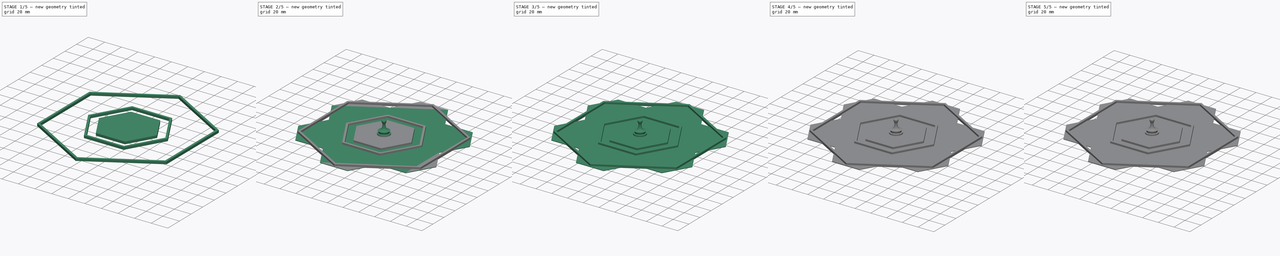
[diagram: build sequence overview — one tinted view per stage of 5, left to right]
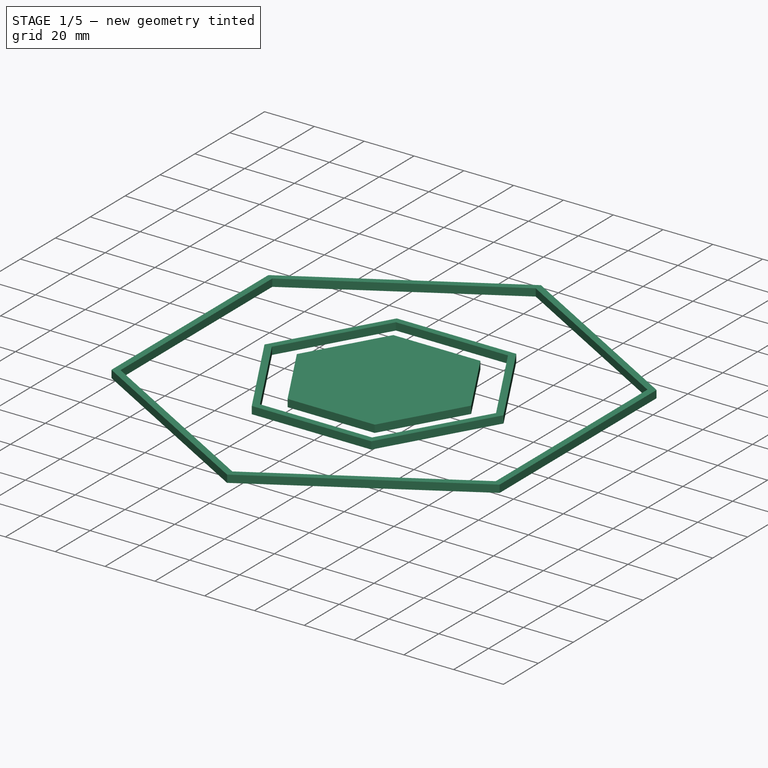
[diagram: stage 1 of 5 — iso view after this stage's code; geometry added in this stage tinted green]
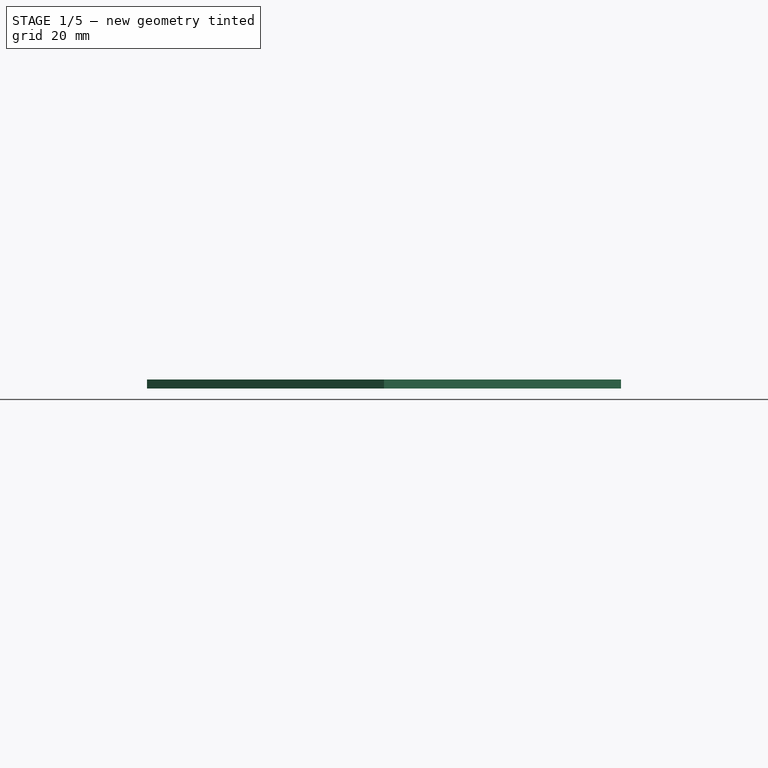
[diagram: stage 1 of 5 — front view after this stage's code; geometry added in this stage tinted green]
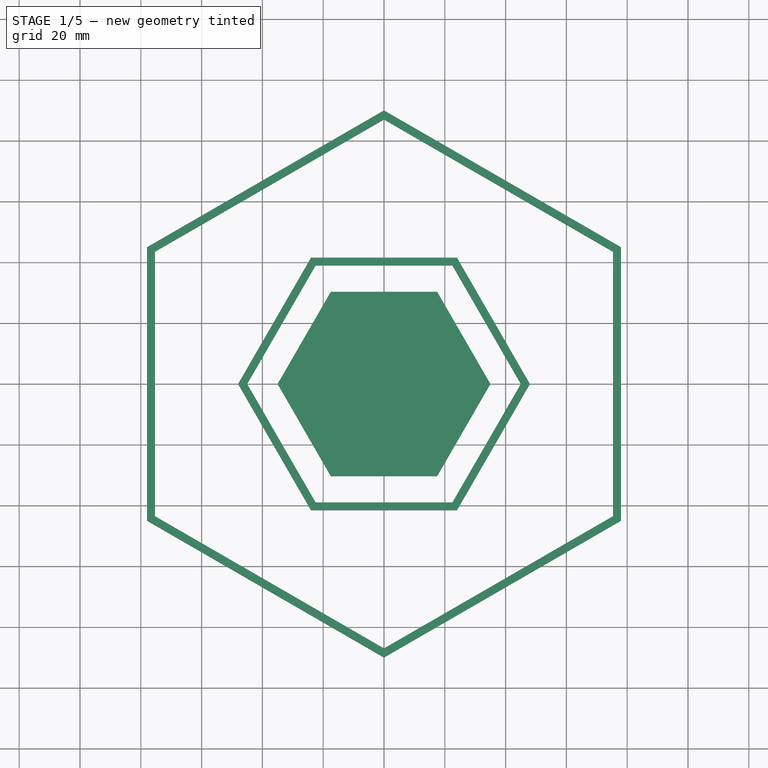
[diagram: stage 1 of 5 — top view after this stage's code; geometry added in this stage tinted green]
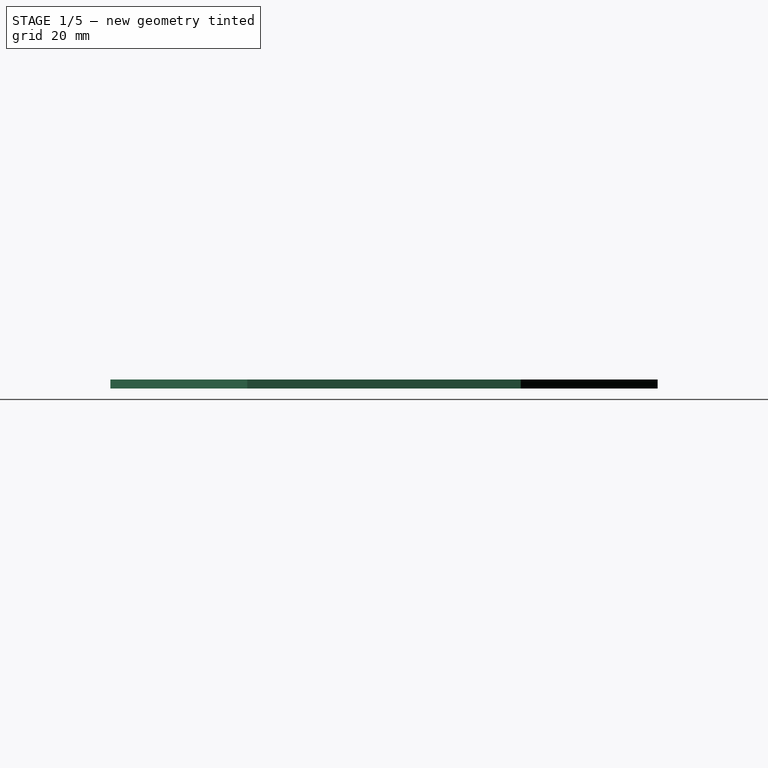
[diagram: stage 1 of 5 — right view after this stage's code; geometry added in this stage tinted green]
FCSTD DOCUMENT  (FreeCAD 0.21R33771 (Git))
Label: map-creator-stencils
License: All rights reserved
LicenseURL: http://en.wikipedia.org/wiki/All_rights_reserved
objects: Sketcher::SketchObject×21, PartDesign::Body×20, PartDesign::Revolution×13, PartDesign::Pad×5, App::Part×3
note: 77 computed .brp shape members not serialized (recipe doc carries the construction recipe); baked Part::Feature solids carry a one-line shape summary decoded from their .brp

FEATURE [PartDesign::Body] Body016  label="base"
  Group = -> [Sketch017,Pad]
  Origin = -> Origin019
  Tip = -> Pad
FEATURE [Sketcher::SketchObject] Sketch018
  FullyConstrained = true
  MapMode = 5
  Support = -> [XY_Plane020]
  sketch-geometry (14):
    g0: LineSegment StartX=22.5 StartY=38.9711 StartZ=0 EndX=-22.5 EndY=38.9711 EndZ=0
    g1: LineSegment StartX=-22.5 StartY=38.9711 StartZ=0 EndX=-45 EndY=0 EndZ=0
    g2: LineSegment StartX=-45 StartY=0 StartZ=0 EndX=-22.5 EndY=-38.9711 EndZ=0
    g3: LineSegment StartX=-22.5 StartY=-38.9711 StartZ=0 EndX=22.5 EndY=-38.9711 EndZ=0
    g4: LineSegment StartX=22.5 StartY=-38.9711 StartZ=0 EndX=45 EndY=0 EndZ=0
    g5: LineSegment StartX=45 StartY=0 StartZ=0 EndX=22.5 EndY=38.9711 EndZ=0
    g6: Circle CenterX=0 CenterY=0 CenterZ=0 NormalX=0 NormalY=0 NormalZ=1 AngleXU=0 Radius=45
    g7: LineSegment StartX=48 StartY=0 StartZ=0 EndX=24 EndY=41.5692 EndZ=0
    g8: LineSegment StartX=24 StartY=41.5692 StartZ=0 EndX=-24 EndY=41.5692 EndZ=0
    g9: LineSegment StartX=-24 StartY=41.5692 StartZ=0 EndX=-48 EndY=4.2917e-12 EndZ=0
    g10: LineSegment StartX=-48 StartY=4.2907e-12 StartZ=0 EndX=-24 EndY=-41.5692 EndZ=0
    g11: LineSegment StartX=-24 StartY=-41.5692 StartZ=0 EndX=24 EndY=-41.5692 EndZ=0
    g12: LineSegment StartX=24 StartY=-41.5692 StartZ=0 EndX=48 EndY=0 EndZ=0
    g13: Circle CenterX=0 CenterY=0 CenterZ=0 NormalX=0 NormalY=0 NormalZ=1 AngleXU=0 Radius=48
  constraints (32):
    c: Coincident(g0,g1)
    c: Coincident(g1,g2)
    c: Coincident(g2,g3)
    c: Coincident(g3,g4)
    c: Coincident(g4,g5)
    c: Coincident(g5,g0)
    c: Equal(g0, g1-g5) x5
    c: PointOnObject(g0,g6)
    c: PointOnObject(g1,g6)
    c: PointOnObject(g2,g6)
    c: PointOnObject(g3,g6)
    c: PointOnObject(g4,g6)
    c: PointOnObject(g5,g6)
    c: Coincident(g6,g-1)
    c: Horizontal(g0)
    c: Radius(g6) = 45
    c: Coincident(g7,g8)
    c: Coincident(g8,g9)
    c: Coincident(g9,g10)
    c: Coincident(g10,g11)
    c: Coincident(g11,g12)
    c: Coincident(g12,g7)
    c: Equal(g7, g8-g12) x5
    c: PointOnObject(g7,g13)
    c: PointOnObject(g8,g13)
    c: PointOnObject(g9,g13)
    c: PointOnObject(g10,g13)
    c: PointOnObject(g11,g13)
    c: PointOnObject(g12,g13)
    c: Coincident(g13,g6)
    c: PointOnObject(g12,g-1)
    c: Radius(g13) = 48
FEATURE [PartDesign::Pad] Pad001
  Direction = (0,0,1)
  Length = 3
  Length2 = 10
  Profile = -> Sketch018
  ReferenceAxis = -> Sketch018 [N_Axis]
  Type = 0
FEATURE [PartDesign::Body] Body017  label="anti-curve"
  Group = -> [Sketch018,Pad001]
  Origin = -> Origin020
  Tip = -> Pad001
FEATURE [Sketcher::SketchObject] Sketch019
  FullyConstrained = true
  MapMode = 5
  Support = -> [XY_Plane021]
  sketch-geometry (14):
    g0: LineSegment StartX=77.9423 StartY=45 StartZ=0 EndX=2.84e-14 EndY=90 EndZ=0
    g1: LineSegment StartX=2.84e-14 StartY=90 StartZ=0 EndX=-77.9423 EndY=45 EndZ=0
    g2: LineSegment StartX=-77.9423 StartY=45 StartZ=0 EndX=-77.9423 EndY=-45 EndZ=0
    g3: LineSegment StartX=-77.9423 StartY=-45 StartZ=0 EndX=-2.84e-14 EndY=-90 EndZ=0
    g4: LineSegment StartX=-2.84e-14 StartY=-90 StartZ=0 EndX=77.9423 EndY=-45 EndZ=0
    g5: LineSegment StartX=77.9423 StartY=-45 StartZ=0 EndX=77.9423 EndY=45 EndZ=0
    g6: Circle CenterX=0 CenterY=0 CenterZ=0 NormalX=0 NormalY=0 NormalZ=1 AngleXU=0 Radius=90
    g7: LineSegment StartX=75.3442 StartY=43.5 StartZ=0 EndX=-6.963e-13 EndY=87 EndZ=0
    g8: LineSegment StartX=-6.963e-13 StartY=87 StartZ=0 EndX=-75.3442 EndY=43.5 EndZ=0
    g9: LineSegment StartX=-75.3442 StartY=43.5 StartZ=0 EndX=-75.3442 EndY=-43.5 EndZ=0
    g10: LineSegment StartX=-75.3442 StartY=-43.5 StartZ=0 EndX=1.1084e-12 EndY=-87 EndZ=0
    g11: LineSegment StartX=1.1084e-12 StartY=-87 StartZ=0 EndX=75.3442 EndY=-43.5 EndZ=0
    g12: LineSegment StartX=75.3442 StartY=-43.5 StartZ=0 EndX=75.3442 EndY=43.5 EndZ=0
    g13: Circle CenterX=0 CenterY=0 CenterZ=0 NormalX=0 NormalY=0 NormalZ=1 AngleXU=0 Radius=87
  constraints (32):
    c: Coincident(g0,g1)
    c: Coincident(g1,g2)
    c: Coincident(g2,g3)
    c: Coincident(g3,g4)
    c: Coincident(g4,g5)
    c: Coincident(g5,g0)
    c: Equal(g0, g1-g5) x5
    c: PointOnObject(g0,g6)
    c: PointOnObject(g1,g6)
    c: PointOnObject(g2,g6)
    c: PointOnObject(g3,g6)
    c: PointOnObject(g4,g6)
    c: PointOnObject(g5,g6)
    c: Coincident(g6,g-1)
    c: Vertical(g5)
    c: Radius(g6) = 90
    c: Coincident(g7,g8)
    c: Coincident(g8,g9)
    c: Coincident(g9,g10)
    c: Coincident(g10,g11)
    c: Coincident(g11,g12)
    c: Coincident(g12,g7)
    c: Equal(g7, g8-g12) x5
    c: PointOnObject(g7,g13)
    c: PointOnObject(g8,g13)
    c: PointOnObject(g9,g13)
    c: PointOnObject(g10,g13)
    c: PointOnObject(g11,g13)
    c: PointOnObject(g12,g13)
    c: Coincident(g13,g6)
    c: Vertical(g12)
    c: Radius(g13) = 87
FEATURE [PartDesign::Pad] Pad002
  Direction = (0,0,1)
  Length = 3
  Length2 = 10
  Profile = -> Sketch019
  ReferenceAxis = -> Sketch019 [N_Axis]
  Type = 0
FEATURE [PartDesign::Body] Body018
  Group = -> [Sketch019,Pad002]
  Origin = -> Origin021
  Tip = -> Pad002
FEATURE [App::Part] Part002  label="stencil-open-35mm"
  Group = -> [Body016,Body017,Body018]
  Origin = -> Origin016
FEATURE [Sketcher::SketchObject] Sketch020
  FullyConstrained = true
  MapMode = 5
  Support = -> [XY_Plane022]
  sketch-geometry (7):
    g0: LineSegment StartX=17.5 StartY=30.3109 StartZ=0 EndX=-17.5 EndY=30.3109 EndZ=0
    g1: LineSegment StartX=-17.5 StartY=30.3109 StartZ=0 EndX=-35 EndY=4.26e-14 EndZ=0
    g2: LineSegment StartX=-35 StartY=4.26e-14 StartZ=0 EndX=-17.5 EndY=-30.3109 EndZ=0
    g3: LineSegment StartX=-17.5 StartY=-30.3109 StartZ=0 EndX=17.5 EndY=-30.3109 EndZ=0
    g4: LineSegment StartX=17.5 StartY=-30.3109 StartZ=0 EndX=35 EndY=4.62e-14 EndZ=0
    g5: LineSegment StartX=35 StartY=4.62e-14 StartZ=0 EndX=17.5 EndY=30.3109 EndZ=0
    g6: Circle CenterX=0 CenterY=0 CenterZ=0 NormalX=0 NormalY=0 NormalZ=1 AngleXU=0 Radius=35
  constraints (16):
    c: Coincident(g0,g1)
    c: Coincident(g1,g2)
    c: Coincident(g2,g3)
    c: Coincident(g3,g4)
    c: Coincident(g4,g5)
    c: Coincident(g5,g0)
    c: Equal(g0, g1-g5) x5
    c: PointOnObject(g0,g6)
    c: PointOnObject(g1,g6)
    c: PointOnObject(g2,g6)
    c: PointOnObject(g3,g6)
    c: PointOnObject(g4,g6)
    c: PointOnObject(g5,g6)
    c: Coincident(g6,g-1)
    c: Horizontal(g0)
    c: Radius(g6) = 35
FEATURE [PartDesign::Pad] Pad003
  Direction = (0,0,1)
  Length = 3
  Length2 = 10
  Profile = -> Sketch020
  ReferenceAxis = -> Sketch020 [N_Axis]
  Type = 0
FEATURE [PartDesign::Body] Body019  label="stencil-closed-35mm"
  Group = -> [Sketch020,Pad003]
  Origin = -> Origin022
  Tip = -> Pad003
FEATURE [Sketcher::SketchObject] Sketch021
  FullyConstrained = true
  MapMode = 5
  Support = -> [XY_Plane023]
  sketch-geometry (7):
    g0: LineSegment StartX=16 StartY=27.7128 StartZ=0 EndX=-16 EndY=27.7128 EndZ=0
    g1: LineSegment StartX=-16 StartY=27.7128 StartZ=0 EndX=-32 EndY=1.10063e-11 EndZ=0
    g2: LineSegment StartX=-32 StartY=1.10063e-11 StartZ=0 EndX=-16 EndY=-27.7128 EndZ=0
    g3: LineSegment StartX=-16 StartY=-27.7128 StartZ=0 EndX=16 EndY=-27.7128 EndZ=0
    g4: LineSegment StartX=16 StartY=-27.7128 StartZ=0 EndX=32 EndY=1.10099e-11 EndZ=0
    g5: LineSegment StartX=32 StartY=1.10099e-11 StartZ=0 EndX=16 EndY=27.7128 EndZ=0
    g6: Circle CenterX=0 CenterY=0 CenterZ=0 NormalX=0 NormalY=0 NormalZ=1 AngleXU=0 Radius=32
  constraints (16):
    c: Coincident(g0,g1)
    c: Coincident(g1,g2)
    c: Coincident(g2,g3)
    c: Coincident(g3,g4)
    c: Coincident(g4,g5)
    c: Coincident(g5,g0)
    c: Equal(g0, g1-g5) x5
    c: PointOnObject(g0,g6)
    c: PointOnObject(g1,g6)
    c: PointOnObject(g2,g6)
    c: PointOnObject(g3,g6)
    c: PointOnObject(g4,g6)
    c: PointOnObject(g5,g6)
    c: Coincident(g6,g-1)
    c: Horizontal(g0)
    c: Radius(g6) = 32
FEATURE [PartDesign::Pad] Pad004
  Direction = (0,0,1)
  Length = 3
  Length2 = 10
  Profile = -> Sketch021
  ReferenceAxis = -> Sketch021 [N_Axis]
  Type = 0
FEATURE [PartDesign::Body] Body020  label="stencil-closed-32mm"
  Group = -> [Sketch021,Pad004]
  Origin = -> Origin023
  Tip = -> Pad004
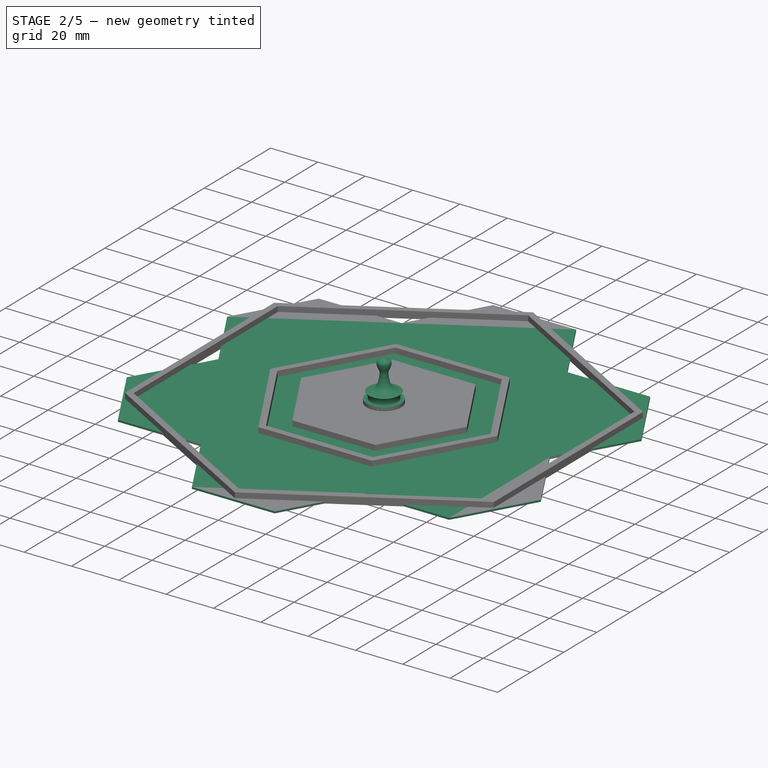
[diagram: stage 2 of 5 — iso view after this stage's code; geometry added in this stage tinted green]
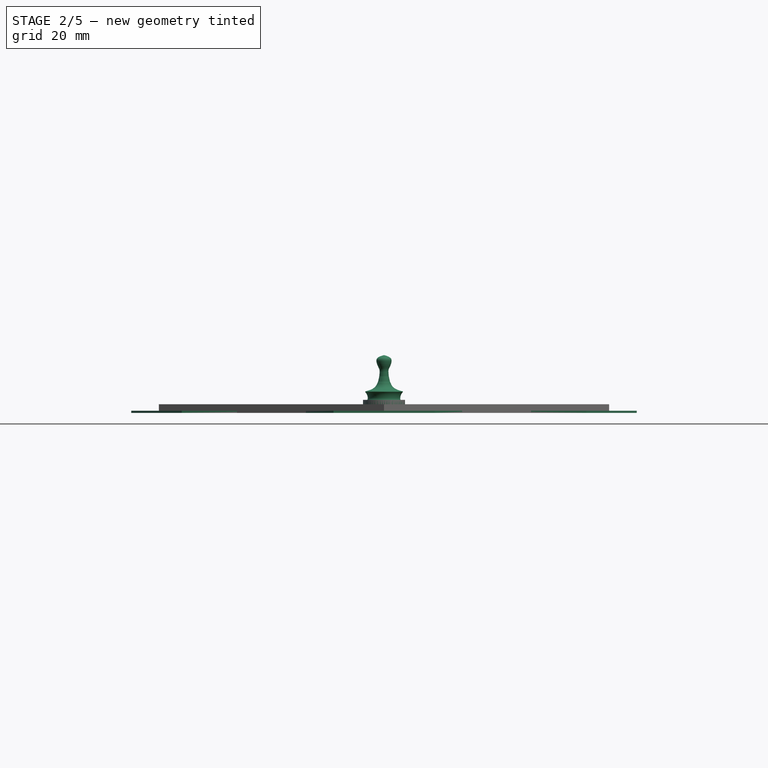
[diagram: stage 2 of 5 — front view after this stage's code; geometry added in this stage tinted green]
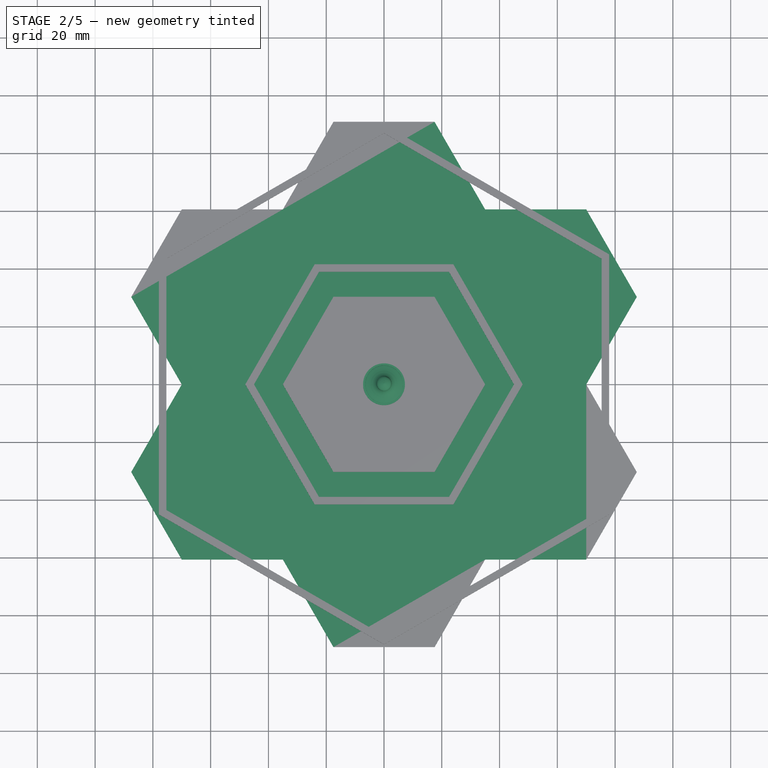
[diagram: stage 2 of 5 — top view after this stage's code; geometry added in this stage tinted green]
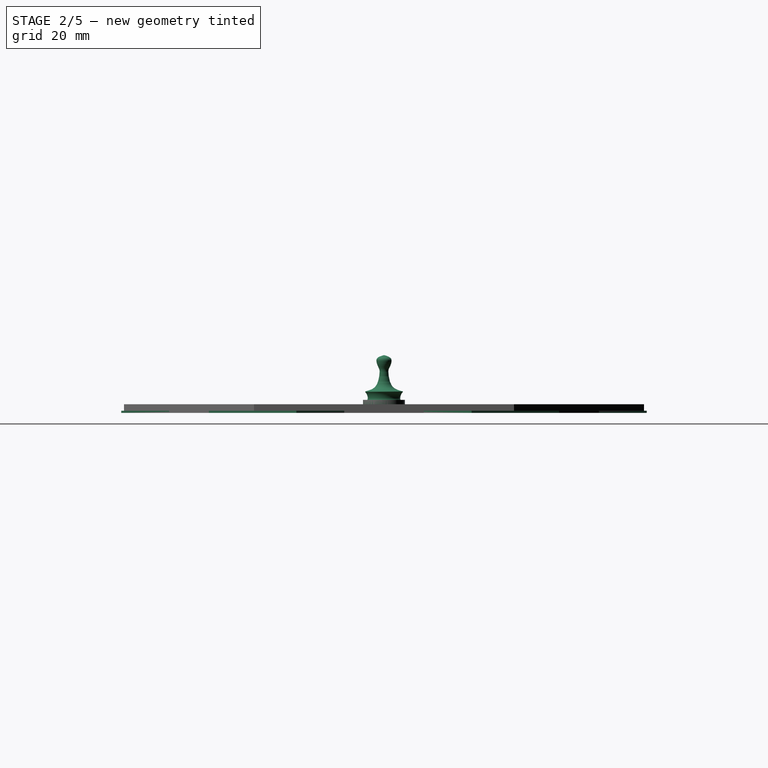
[diagram: stage 2 of 5 — right view after this stage's code; geometry added in this stage tinted green]
FEATURE [PartDesign::Body] Body011  label="invader-a003"
  Group = -> [Sketch011,Revolution010]
  Origin = -> Origin012
  Placement = pos=(26.04,-16.17,0) rot=(0,0,1;0rad)
  Tip = -> Revolution010
FEATURE [Sketcher::SketchObject] Sketch012
  FullyConstrained = false
  MapMode = 5
  Placement = pos=(0,0,0) rot=(1,0,0;1.5708rad)
  Support = -> [XZ_Plane013]
  sketch-geometry (29):
    g0: LineSegment StartX=-5.75 StartY=0 StartZ=0 EndX=-5.75 EndY=3 EndZ=0
    g1: LineSegment StartX=-5.75 StartY=3 StartZ=0 EndX=0 EndY=3 EndZ=0
    g2: LineSegment StartX=-5.75 StartY=0 StartZ=0 EndX=-7.25 EndY=0 EndZ=0
    g3: LineSegment StartX=-7.25 StartY=0 StartZ=0 EndX=-7.25 EndY=4.5 EndZ=0
    g4: LineSegment StartX=-7.25 StartY=4.5 StartZ=0 EndX=-5.75 EndY=4.5 EndZ=0
    g5-g16: Circle x12 (B-spline internal-alignment scaffolding for g17; pole/knot coordinates omitted)
    g17: BSplineCurve PolesCount=12 KnotsCount=10 Degree=3 IsPeriodic=0
    g18-g27: GeomPoint x10 (B-spline internal-alignment scaffolding for g17; pole/knot coordinates omitted)
    g28: LineSegment StartX=0 StartY=20 StartZ=0 EndX=0 EndY=3 EndZ=0
  constraints (39):
    c: PointOnObject(g0,g-1)
    c: Vertical(g0)
    c: DistanceY(g0,g0) = 3
    c: Coincident(g1,g0)
    c: PointOnObject(g1,g-2)
    c: Horizontal(g1)
    c: DistanceX(g1,g1) = 5.75
    c: Coincident(g2,g0)
    c: PointOnObject(g2,g-1)
    c: DistanceX(g2,g2) = 1.5
    c: Coincident(g3,g2)
    c: Vertical(g3)
    c: DistanceY(g3,g3) = 4.5
    c: Coincident(g4,g3)
    c: Horizontal(g4)
    c: DistanceX(g4,g4) = 1.5
    c: Weight(g5) = 1
    c: Coincident(g17,g4)
    c: Equal(g5,g6)
    c: Equal(g5,g7)
    c: Equal(g5,g8)
    c: PointOnObject(g8,g7)
    c: Equal(g5,g9)
    c: Equal(g5,g10)
    c: Equal(g5,g11)
    c: PointOnObject(g11,g10)
    c: Equal(g5,g12)
    c: Equal(g5,g13)
    c: Equal(g5,g14)
    c: PointOnObject(g14,g-2)
    c: Equal(g5,g15)
    c: Coincident(g15,g14)
    c: Equal(g5,g16)
    c: InternalAlignment(g5-g16 -> g17) x12
    c: InternalAlignment(g18-g27 -> g17) x10
    c: Coincident(g28,g17)
    c: Coincident(g28,g1)
    c: Vertical(g28)
    c: DistanceY(g28,g28) = 17
FEATURE [PartDesign::Revolution] Revolution011
  Angle = 360
  Axis = (0,-2e-16,1)
  Base = (0,0,0)
  Placement = pos=(0,0,0) rot=(1,0,0;1.5708rad)
  Profile = -> Sketch012
  ReferenceAxis = -> Sketch012 [V_Axis]
FEATURE [PartDesign::Body] Body012  label="invader-a004"
  Group = -> [Sketch012,Revolution011]
  Origin = -> Origin013
  Placement = pos=(25.49,16.05,0) rot=(0,0,1;0rad)
  Tip = -> Revolution011
FEATURE [Sketcher::SketchObject] Sketch013
  FullyConstrained = false
  MapMode = 5
  Placement = pos=(0,0,0) rot=(1,0,0;1.5708rad)
  Support = -> [XZ_Plane014]
  sketch-geometry (29):
    g0: LineSegment StartX=-5.75 StartY=0 StartZ=0 EndX=-5.75 EndY=3 EndZ=0
    g1: LineSegment StartX=-5.75 StartY=3 StartZ=0 EndX=0 EndY=3 EndZ=0
    g2: LineSegment StartX=-5.75 StartY=0 StartZ=0 EndX=-7.25 EndY=0 EndZ=0
    g3: LineSegment StartX=-7.25 StartY=0 StartZ=0 EndX=-7.25 EndY=4.5 EndZ=0
    g4: LineSegment StartX=-7.25 StartY=4.5 StartZ=0 EndX=-5.75 EndY=4.5 EndZ=0
    g5-g16: Circle x12 (B-spline internal-alignment scaffolding for g17; pole/knot coordinates omitted)
    g17: BSplineCurve PolesCount=12 KnotsCount=10 Degree=3 IsPeriodic=0
    g18-g27: GeomPoint x10 (B-spline internal-alignment scaffolding for g17; pole/knot coordinates omitted)
    g28: LineSegment StartX=0 StartY=20 StartZ=0 EndX=0 EndY=3 EndZ=0
  constraints (39):
    c: PointOnObject(g0,g-1)
    c: Vertical(g0)
    c: DistanceY(g0,g0) = 3
    c: Coincident(g1,g0)
    c: PointOnObject(g1,g-2)
    c: Horizontal(g1)
    c: DistanceX(g1,g1) = 5.75
    c: Coincident(g2,g0)
    c: PointOnObject(g2,g-1)
    c: DistanceX(g2,g2) = 1.5
    c: Coincident(g3,g2)
    c: Vertical(g3)
    c: DistanceY(g3,g3) = 4.5
    c: Coincident(g4,g3)
    c: Horizontal(g4)
    c: DistanceX(g4,g4) = 1.5
    c: Weight(g5) = 1
    c: Coincident(g17,g4)
    c: Equal(g5,g6)
    c: Equal(g5,g7)
    c: Equal(g5,g8)
    c: PointOnObject(g8,g7)
    c: Equal(g5,g9)
    c: Equal(g5,g10)
    c: Equal(g5,g11)
    c: PointOnObject(g11,g10)
    c: Equal(g5,g12)
    c: Equal(g5,g13)
    c: Equal(g5,g14)
    c: PointOnObject(g14,g-2)
    c: Equal(g5,g15)
    c: Coincident(g15,g14)
    c: Equal(g5,g16)
    c: InternalAlignment(g5-g16 -> g17) x12
    c: InternalAlignment(g18-g27 -> g17) x10
    c: Coincident(g28,g17)
    c: Coincident(g28,g1)
    c: Vertical(g28)
    c: DistanceY(g28,g28) = 17
FEATURE [PartDesign::Revolution] Revolution012
  Angle = 360
  Axis = (0,-2e-16,1)
  Base = (0,0,0)
  Placement = pos=(0,0,0) rot=(1,0,0;1.5708rad)
  Profile = -> Sketch013
  ReferenceAxis = -> Sketch013 [V_Axis]
FEATURE [PartDesign::Body] Body013  label="invader-a005"
  Group = -> [Sketch013,Revolution012]
  Origin = -> Origin014
  Placement = pos=(1.74,30.19,0) rot=(0,0,1;0rad)
  Tip = -> Revolution012
FEATURE [Sketcher::SketchObject] Sketch014
  FullyConstrained = true
  MapMode = 5
  Support = -> [XY_Plane009]
FEATURE [PartDesign::Body] Body008  label="invader-a"
  Group = -> [Sketch008,Revolution007,Sketch014]
  Origin = -> Origin009
  Placement = pos=(-27.36,-16.22,0) rot=(0,0,1;0rad)
  Tip = -> Revolution007
FEATURE [App::Part] Part  label="Loaded cluster"
  Group = -> [Body001,Body002,Body003,Body004,Body005,Body006,Body007,Body008,Body009,Body010,Body011,Body012,Body013]
  Origin = -> Origin001
FEATURE [Sketcher::SketchObject] Sketch016
  FullyConstrained = true
  MapMode = 5
  Support = -> [XY_Plane018]
  sketch-geometry (49):
    g0: LineSegment StartX=17.5 StartY=30.3109 StartZ=0 EndX=-17.5 EndY=30.3109 EndZ=0
    g1: LineSegment StartX=-17.5 StartY=30.3109 StartZ=0 EndX=-35 EndY=0 EndZ=0
    g2: LineSegment StartX=-35 StartY=0 StartZ=0 EndX=-17.5 EndY=-30.3109 EndZ=0
    g3: LineSegment StartX=-17.5 StartY=-30.3109 StartZ=0 EndX=17.5 EndY=-30.3109 EndZ=0
    g4: LineSegment StartX=17.5 StartY=-30.3109 StartZ=0 EndX=35 EndY=-3.6e-15 EndZ=0
    g5: LineSegment StartX=35 StartY=-3.6e-15 StartZ=0 EndX=17.5 EndY=30.3109 EndZ=0
    g6: Circle CenterX=0 CenterY=0 CenterZ=0 NormalX=0 NormalY=0 NormalZ=1 AngleXU=0 Radius=35
    g7: LineSegment StartX=35 StartY=-3.6e-15 StartZ=0 EndX=70 EndY=-9e-16 EndZ=0
    g8: LineSegment StartX=70 StartY=-9e-16 StartZ=0 EndX=87.5 EndY=30.3109 EndZ=0
    g9: LineSegment StartX=87.5 StartY=30.3109 StartZ=0 EndX=70 EndY=60.6218 EndZ=0
    g10: LineSegment StartX=70 StartY=60.6218 StartZ=0 EndX=35 EndY=60.6218 EndZ=0
    g11: LineSegment StartX=35 StartY=60.6218 StartZ=0 EndX=17.5 EndY=30.3109 EndZ=0
    g12: LineSegment StartX=17.5 StartY=30.3109 StartZ=0 EndX=35 EndY=-3.6e-15 EndZ=0
    g13: Circle CenterX=52.5 CenterY=30.3109 CenterZ=0 NormalX=0 NormalY=0 NormalZ=1 AngleXU=0 Radius=35
    g14: LineSegment StartX=17.5 StartY=30.3109 StartZ=0 EndX=35 EndY=60.6218 EndZ=0
    g15: LineSegment StartX=35 StartY=60.6218 StartZ=0 EndX=17.5 EndY=90.9327 EndZ=0
    g16: LineSegment StartX=17.5 StartY=90.9327 StartZ=0 EndX=-17.5 EndY=90.9327 EndZ=0
    g17: LineSegment StartX=-17.5 StartY=90.9327 StartZ=0 EndX=-35 EndY=60.6218 EndZ=0
    g18: LineSegment StartX=-35 StartY=60.6218 StartZ=0 EndX=-17.5 EndY=30.3109 EndZ=0
    g19: LineSegment StartX=-17.5 StartY=30.3109 StartZ=0 EndX=17.5 EndY=30.3109 EndZ=0
    g20: Circle CenterX=-4.1e-15 CenterY=60.6218 CenterZ=0 NormalX=0 NormalY=0 NormalZ=1 AngleXU=0 Radius=35
    g21: LineSegment StartX=-35 StartY=0 StartZ=0 EndX=-17.5 EndY=30.3109 EndZ=0
    g22: LineSegment StartX=-17.5 StartY=30.3109 StartZ=0 EndX=-35 EndY=60.6218 EndZ=0
    g23: LineSegment StartX=-35 StartY=60.6218 StartZ=0 EndX=-70 EndY=60.6218 EndZ=0
    g24: LineSegment StartX=-70 StartY=60.6218 StartZ=0 EndX=-87.5 EndY=30.3109 EndZ=0
    g25: LineSegment StartX=-87.5 StartY=30.3109 StartZ=0 EndX=-70 EndY=3.6e-15 EndZ=0
    g26: LineSegment StartX=-70 StartY=3.6e-15 StartZ=0 EndX=-35 EndY=0 EndZ=0
    g27: Circle CenterX=-52.5 CenterY=30.3109 CenterZ=0 NormalX=0 NormalY=0 NormalZ=1 AngleXU=0 Radius=35
    g28: LineSegment StartX=-35 StartY=-60.6218 StartZ=0 EndX=-17.5 EndY=-30.3109 EndZ=0
    g29: LineSegment StartX=-17.5 StartY=-30.3109 StartZ=0 EndX=-35 EndY=0 EndZ=0
    g30: LineSegment StartX=-35 StartY=0 StartZ=0 EndX=-70 EndY=6e-15 EndZ=0
    g31: LineSegment StartX=-70 StartY=6e-15 StartZ=0 EndX=-87.5 EndY=-30.3109 EndZ=0
    g32: LineSegment StartX=-87.5 StartY=-30.3109 StartZ=0 EndX=-70 EndY=-60.6218 EndZ=0
    g33: LineSegment StartX=-70 StartY=-60.6218 StartZ=0 EndX=-35 EndY=-60.6218 EndZ=0
    g34: Circle CenterX=-52.5 CenterY=-30.3109 CenterZ=0 NormalX=0 NormalY=0 NormalZ=1 AngleXU=0 Radius=35
    g35: LineSegment StartX=-17.5 StartY=-30.3109 StartZ=0 EndX=-35 EndY=-60.6218 EndZ=0
    g36: LineSegment StartX=-35 StartY=-60.6218 StartZ=0 EndX=-17.5 EndY=-90.9327 EndZ=0
    g37: LineSegment StartX=-17.5 StartY=-90.9327 StartZ=0 EndX=17.5 EndY=-90.9327 EndZ=0
    g38: LineSegment StartX=17.5 StartY=-90.9327 StartZ=0 EndX=35 EndY=-60.6218 EndZ=0
    g39: LineSegment StartX=35 StartY=-60.6218 StartZ=0 EndX=17.5 EndY=-30.3109 EndZ=0
    g40: LineSegment StartX=17.5 StartY=-30.3109 StartZ=0 EndX=-17.5 EndY=-30.3109 EndZ=0
    g41: Circle CenterX=-1.3163e-12 CenterY=-60.6218 CenterZ=0 NormalX=0 NormalY=0 NormalZ=1 AngleXU=0 Radius=35
    g42: LineSegment StartX=70 StartY=-60.6218 StartZ=0 EndX=87.5 EndY=-30.3109 EndZ=0
    g43: LineSegment StartX=87.5 StartY=-30.3109 StartZ=0 EndX=70 EndY=-4.2775e-12 EndZ=0
    g44: LineSegment StartX=70 StartY=-4.2775e-12 StartZ=0 EndX=35 EndY=-3.6e-15 EndZ=0
    g45: LineSegment StartX=35 StartY=-3.6e-15 StartZ=0 EndX=17.5 EndY=-30.3109 EndZ=0
    g46: LineSegment StartX=17.5 StartY=-30.3109 StartZ=0 EndX=35 EndY=-60.6218 EndZ=0
    g47: LineSegment StartX=35 StartY=-60.6218 StartZ=0 EndX=70 EndY=-60.6218 EndZ=0
    g48: Circle CenterX=52.5 CenterY=-30.3109 CenterZ=0 NormalX=0 NormalY=0 NormalZ=1 AngleXU=0 Radius=35
  constraints (106):
    c: Coincident(g0,g1)
    c: Coincident(g1,g2)
    c: Coincident(g2,g3)
    c: Coincident(g3,g4)
    c: Coincident(g4,g5)
    c: Coincident(g5,g0)
    c: Equal(g0, g1-g5) x5
    c: PointOnObject(g0,g6)
    c: PointOnObject(g1,g6)
    c: PointOnObject(g2,g6)
    c: PointOnObject(g3,g6)
    c: PointOnObject(g4,g6)
    c: PointOnObject(g5,g6)
    c: Coincident(g6,g-1)
    c: Horizontal(g0)
    c: DistanceX(g6,g4) = 35
    c: Coincident(g7,g8)
    c: Coincident(g8,g9)
    c: Coincident(g9,g10)
    c: Coincident(g10,g11)
    c: Coincident(g11,g12)
    c: Coincident(g12,g7)
    c: Equal(g7, g8-g12) x5
    c: PointOnObject(g7,g13)
    c: PointOnObject(g8,g13)
    c: PointOnObject(g9,g13)
    c: PointOnObject(g10,g13)
    c: PointOnObject(g11,g13)
    c: PointOnObject(g12,g13)
    c: Coincident(g11,g0)
    c: Coincident(g7,g4)
    c: Coincident(g14,g15)
    c: Coincident(g15,g16)
    c: Coincident(g16,g17)
    c: Coincident(g17,g18)
    c: Coincident(g18,g19)
    c: Coincident(g19,g14)
    c: Equal(g14, g15-g19) x5
    c: PointOnObject(g14,g20)
    c: PointOnObject(g15,g20)
    c: PointOnObject(g16,g20)
    c: PointOnObject(g17,g20)
    c: PointOnObject(g18,g20)
    c: PointOnObject(g19,g20)
    c: Coincident(g14,g0)
    c: Coincident(g18,g0)
    c: Coincident(g21,g22)
    c: Coincident(g22,g23)
    c: Coincident(g23,g24)
    c: Coincident(g24,g25)
    c: Coincident(g25,g26)
    c: Coincident(g26,g21)
    c: Equal(g21, g22-g26) x5
    c: PointOnObject(g21,g27)
    c: PointOnObject(g22,g27)
    c: PointOnObject(g23,g27)
    c: PointOnObject(g24,g27)
    c: PointOnObject(g25,g27)
    c: PointOnObject(g26,g27)
    c: Coincident(g21,g0)
    c: Coincident(g21,g1)
    c: Coincident(g28,g29)
    c: Coincident(g29,g30)
    c: Coincident(g30,g31)
    c: Coincident(g31,g32)
    c: Coincident(g32,g33)
    c: Coincident(g33,g28)
    c: Equal(g28, g29-g33) x5
    c: PointOnObject(g28,g34)
    c: PointOnObject(g29,g34)
    c: PointOnObject(g30,g34)
    c: PointOnObject(g31,g34)
    c: PointOnObject(g32,g34)
    c: PointOnObject(g33,g34)
    c: Coincident(g29,g1)
    c: Coincident(g28,g2)
    c: Coincident(g35,g36)
    c: Coincident(g36,g37)
    c: Coincident(g37,g38)
    c: Coincident(g38,g39)
    c: Coincident(g39,g40)
    c: Coincident(g40,g35)
    c: Equal(g35, g36-g40) x5
    c: PointOnObject(g35,g41)
    c: PointOnObject(g36,g41)
    c: PointOnObject(g37,g41)
    c: PointOnObject(g38,g41)
    c: PointOnObject(g39,g41)
    c: PointOnObject(g40,g41)
    c: Coincident(g35,g2)
    c: Coincident(g39,g3)
    c: Coincident(g42,g43)
    c: Coincident(g43,g44)
    c: Coincident(g44,g45)
    c: Coincident(g45,g46)
    c: Coincident(g46,g47)
    c: Coincident(g47,g42)
    c: Equal(g42, g43-g47) x5
    c: PointOnObject(g42,g48)
    c: PointOnObject(g43,g48)
    c: PointOnObject(g44,g48)
    c: PointOnObject(g45,g48)
    c: PointOnObject(g46,g48)
    c: PointOnObject(g47,g48)
    c: Coincident(g44,g4)
    c: Coincident(g45,g3)
FEATURE [PartDesign::Body] Body015  label="hexagon-7-cluster"
  Group = -> [Sketch016]
  Origin = -> Origin018
FEATURE [App::Part] Part001  label="Reference info"
  Group = -> [Body,Body015]
  Origin = -> Origin015
FEATURE [Sketcher::SketchObject] Sketch017
  FullyConstrained = true
  MapMode = 5
  Support = -> [XY_Plane019]
  sketch-geometry (73):
    g0: LineSegment StartX=17.5 StartY=30.3109 StartZ=0 EndX=-17.5 EndY=30.3109 EndZ=0
    g1: LineSegment StartX=-17.5 StartY=30.3109 StartZ=0 EndX=-35 EndY=0 EndZ=0
    g2: LineSegment StartX=-35 StartY=0 StartZ=0 EndX=-17.5 EndY=-30.3109 EndZ=0
    g3: LineSegment StartX=-17.5 StartY=-30.3109 StartZ=0 EndX=17.5 EndY=-30.3109 EndZ=0
    g4: LineSegment StartX=17.5 StartY=-30.3109 StartZ=0 EndX=35 EndY=0 EndZ=0
    g5: LineSegment StartX=35 StartY=0 StartZ=0 EndX=17.5 EndY=30.3109 EndZ=0
    g6: Circle CenterX=0 CenterY=0 CenterZ=0 NormalX=0 NormalY=0 NormalZ=1 AngleXU=0 Radius=35
    g7: LineSegment StartX=35 StartY=0 StartZ=0 EndX=70 EndY=4.7e-15 EndZ=0
    g8: LineSegment StartX=70 StartY=4.7e-15 StartZ=0 EndX=87.5 EndY=30.3109 EndZ=0
    g9: LineSegment StartX=87.5 StartY=30.3109 StartZ=0 EndX=70 EndY=60.6218 EndZ=0
    g10: LineSegment StartX=70 StartY=60.6218 StartZ=0 EndX=35 EndY=60.6218 EndZ=0
    g11: LineSegment StartX=35 StartY=60.6218 StartZ=0 EndX=17.5 EndY=30.3109 EndZ=0
    g12: LineSegment StartX=17.5 StartY=30.3109 StartZ=0 EndX=35 EndY=0 EndZ=0
    g13: Circle CenterX=52.5 CenterY=30.3109 CenterZ=0 NormalX=0 NormalY=0 NormalZ=1 AngleXU=0 Radius=35
    g14: LineSegment StartX=17.5 StartY=30.3109 StartZ=0 EndX=35 EndY=60.6218 EndZ=0
    g15: LineSegment StartX=35 StartY=60.6218 StartZ=0 EndX=17.5 EndY=90.9327 EndZ=0
    g16: LineSegment StartX=17.5 StartY=90.9327 StartZ=0 EndX=-17.5 EndY=90.9327 EndZ=0
    g17: LineSegment StartX=-17.5 StartY=90.9327 StartZ=0 EndX=-35 EndY=60.6218 EndZ=0
    g18: LineSegment StartX=-35 StartY=60.6218 StartZ=0 EndX=-17.5 EndY=30.3109 EndZ=0
    g19: LineSegment StartX=-17.5 StartY=30.3109 StartZ=0 EndX=17.5 EndY=30.3109 EndZ=0
    g20: Circle CenterX=1.5e-15 CenterY=60.6218 CenterZ=0 NormalX=0 NormalY=0 NormalZ=1 AngleXU=0 Radius=35
    g21: LineSegment StartX=-35 StartY=0 StartZ=0 EndX=-17.5 EndY=30.3109 EndZ=0
    g22: LineSegment StartX=-17.5 StartY=30.3109 StartZ=0 EndX=-35 EndY=60.6218 EndZ=0
    g23: LineSegment StartX=-35 StartY=60.6218 StartZ=0 EndX=-70 EndY=60.6218 EndZ=0
    g24: LineSegment StartX=-70 StartY=60.6218 StartZ=0 EndX=-87.5 EndY=30.3109 EndZ=0
    g25: LineSegment StartX=-87.5 StartY=30.3109 StartZ=0 EndX=-70 EndY=3.6e-15 EndZ=0
    g26: LineSegment StartX=-70 StartY=3.6e-15 StartZ=0 EndX=-35 EndY=0 EndZ=0
    g27: Circle CenterX=-52.5 CenterY=30.3109 CenterZ=0 NormalX=0 NormalY=0 NormalZ=1 AngleXU=0 Radius=35
    g28: LineSegment StartX=-35 StartY=-60.6218 StartZ=0 EndX=-17.5 EndY=-30.3109 EndZ=0
    g29: LineSegment StartX=-17.5 StartY=-30.3109 StartZ=0 EndX=-35 EndY=0 EndZ=0
    g30: LineSegment StartX=-35 StartY=0 StartZ=0 EndX=-70 EndY=4.7e-15 EndZ=0
    g31: LineSegment StartX=-70 StartY=4.7e-15 StartZ=0 EndX=-87.5 EndY=-30.3109 EndZ=0
    g32: LineSegment StartX=-87.5 StartY=-30.3109 StartZ=0 EndX=-70 EndY=-60.6218 EndZ=0
    g33: LineSegment StartX=-70 StartY=-60.6218 StartZ=0 EndX=-35 EndY=-60.6218 EndZ=0
    g34: Circle CenterX=-52.5 CenterY=-30.3109 CenterZ=0 NormalX=0 NormalY=0 NormalZ=1 AngleXU=0 Radius=35
    g35: LineSegment StartX=-17.5 StartY=-30.3109 StartZ=0 EndX=-35 EndY=-60.6218 EndZ=0
    g36: LineSegment StartX=-35 StartY=-60.6218 StartZ=0 EndX=-17.5 EndY=-90.9327 EndZ=0
    g37: LineSegment StartX=-17.5 StartY=-90.9327 StartZ=0 EndX=17.5 EndY=-90.9327 EndZ=0
    g38: LineSegment StartX=17.5 StartY=-90.9327 StartZ=0 EndX=35 EndY=-60.6218 EndZ=0
    g39: LineSegment StartX=35 StartY=-60.6218 StartZ=0 EndX=17.5 EndY=-30.3109 EndZ=0
    g40: LineSegment StartX=17.5 StartY=-30.3109 StartZ=0 EndX=-17.5 EndY=-30.3109 EndZ=0
    g41: Circle CenterX=-3.8e-15 CenterY=-60.6218 CenterZ=0 NormalX=0 NormalY=0 NormalZ=1 AngleXU=0 Radius=35
    g42: LineSegment StartX=70 StartY=-60.6218 StartZ=0 EndX=87.5 EndY=-30.3109 EndZ=0
    g43: LineSegment StartX=87.5 StartY=-30.3109 StartZ=0 EndX=70 EndY=3.6e-15 EndZ=0
    g44: LineSegment StartX=70 StartY=3.6e-15 StartZ=0 EndX=35 EndY=0 EndZ=0
    g45: LineSegment StartX=35 StartY=0 StartZ=0 EndX=17.5 EndY=-30.3109 EndZ=0
    g46: LineSegment StartX=17.5 StartY=-30.3109 StartZ=0 EndX=35 EndY=-60.6218 EndZ=0
    g47: LineSegment StartX=35 StartY=-60.6218 StartZ=0 EndX=70 EndY=-60.6218 EndZ=0
    g48: Circle CenterX=52.5 CenterY=-30.3109 CenterZ=0 NormalX=0 NormalY=0 NormalZ=1 AngleXU=0 Radius=35
    g49: LineSegment StartX=17.5 StartY=90.9327 StartZ=0 EndX=35 EndY=60.6218 EndZ=0
    g50: LineSegment StartX=35 StartY=60.6218 StartZ=0 EndX=70 EndY=60.6218 EndZ=0
    g51: LineSegment StartX=70 StartY=4.7e-15 StartZ=0 EndX=87.5 EndY=-30.3109 EndZ=0
    g52: LineSegment StartX=35 StartY=-60.6218 StartZ=0 EndX=17.5 EndY=-90.9327 EndZ=0
    g53: LineSegment StartX=17.5 StartY=-90.9327 StartZ=0 EndX=-17.5 EndY=-90.9327 EndZ=0
    g54: LineSegment StartX=-17.5 StartY=-90.9327 StartZ=0 EndX=-35 EndY=-60.6218 EndZ=0
    g55: LineSegment StartX=-35 StartY=-60.6218 StartZ=0 EndX=-70 EndY=-60.6218 EndZ=0
    g56: LineSegment StartX=-87.5 StartY=30.3109 StartZ=0 EndX=-70 EndY=60.6218 EndZ=0
    g57: LineSegment StartX=-70 StartY=60.6218 StartZ=0 EndX=-35 EndY=60.6218 EndZ=0
    g58: LineSegment StartX=-35 StartY=60.6218 StartZ=0 EndX=-17.5 EndY=90.9327 EndZ=0
    g59: LineSegment StartX=-17.5 StartY=90.9327 StartZ=0 EndX=17.5 EndY=90.9327 EndZ=0
    g60: LineSegment StartX=-87.5 StartY=30.3109 StartZ=0 EndX=-70 EndY=3.6e-15 EndZ=0
    g61: LineSegment StartX=-70 StartY=3.6e-15 StartZ=0 EndX=-87.5 EndY=-30.3109 EndZ=0
    g62: LineSegment StartX=-87.5 StartY=-30.3109 StartZ=0 EndX=-70 EndY=-60.6218 EndZ=0
    g63: LineSegment StartX=35 StartY=-60.6218 StartZ=0 EndX=70 EndY=-60.6218 EndZ=0
    g64: LineSegment StartX=70 StartY=-60.6218 StartZ=0 EndX=87.5 EndY=-30.3109 EndZ=0
    g65: LineSegment StartX=70 StartY=4.7e-15 StartZ=0 EndX=87.5 EndY=30.3109 EndZ=0
    g66: LineSegment StartX=87.5 StartY=30.3109 StartZ=0 EndX=70 EndY=60.6218 EndZ=0
    g67: LineSegment StartX=-17.5 StartY=30.3109 StartZ=0 EndX=17.5 EndY=30.3109 EndZ=0
    g68: LineSegment StartX=35 StartY=0 StartZ=0 EndX=17.5 EndY=-30.3109 EndZ=0
    g69: LineSegment StartX=-17.5 StartY=-30.3109 StartZ=0 EndX=-35 EndY=0 EndZ=0
    g70: LineSegment StartX=-17.5 StartY=30.3109 StartZ=0 EndX=-35 EndY=0 EndZ=0
    g71: LineSegment StartX=-17.5 StartY=-30.3109 StartZ=0 EndX=17.5 EndY=-30.3109 EndZ=0
    g72: LineSegment StartX=17.5 StartY=30.3109 StartZ=0 EndX=35 EndY=0 EndZ=0
  constraints (154):
    c: Coincident(g0,g1)
    c: Coincident(g1,g2)
    c: Coincident(g2,g3)
    c: Coincident(g3,g4)
    c: Coincident(g4,g5)
    c: Coincident(g5,g0)
    c: Equal(g0, g1-g5) x5
    c: PointOnObject(g0,g6)
    c: PointOnObject(g1,g6)
    c: PointOnObject(g2,g6)
    c: PointOnObject(g3,g6)
    c: PointOnObject(g4,g6)
    c: PointOnObject(g5,g6)
    c: Coincident(g6,g-1)
    c: Horizontal(g0)
    c: DistanceX(g6,g4) = 35
    c: Coincident(g7,g8)
    c: Coincident(g8,g9)
    c: Coincident(g9,g10)
    c: Coincident(g10,g11)
    c: Coincident(g11,g12)
    c: Coincident(g12,g7)
    c: Equal(g7, g8-g12) x5
    c: PointOnObject(g7,g13)
    c: PointOnObject(g8,g13)
    c: PointOnObject(g9,g13)
    c: PointOnObject(g10,g13)
    c: PointOnObject(g11,g13)
    c: PointOnObject(g12,g13)
    c: Coincident(g11,g0)
    c: Coincident(g7,g4)
    c: Coincident(g14,g15)
    c: Coincident(g15,g16)
    c: Coincident(g16,g17)
    c: Coincident(g17,g18)
    c: Coincident(g18,g19)
    c: Coincident(g19,g14)
    c: Equal(g14, g15-g19) x5
    c: PointOnObject(g14,g20)
    c: PointOnObject(g15,g20)
    c: PointOnObject(g16,g20)
    c: PointOnObject(g17,g20)
    c: PointOnObject(g18,g20)
    c: PointOnObject(g19,g20)
    c: Coincident(g14,g0)
    c: Coincident(g18,g0)
    c: Coincident(g21,g22)
    c: Coincident(g22,g23)
    c: Coincident(g23,g24)
    c: Coincident(g24,g25)
    c: Coincident(g25,g26)
    c: Coincident(g26,g21)
    c: Equal(g21, g22-g26) x5
    c: PointOnObject(g21,g27)
    c: PointOnObject(g22,g27)
    c: PointOnObject(g23,g27)
    c: PointOnObject(g24,g27)
    c: PointOnObject(g25,g27)
    c: PointOnObject(g26,g27)
    c: Coincident(g21,g0)
    c: Coincident(g21,g1)
    c: Coincident(g28,g29)
    c: Coincident(g29,g30)
    c: Coincident(g30,g31)
    c: Coincident(g31,g32)
    c: Coincident(g32,g33)
    c: Coincident(g33,g28)
    c: Equal(g28, g29-g33) x5
    c: PointOnObject(g28,g34)
    c: PointOnObject(g29,g34)
    c: PointOnObject(g30,g34)
    c: PointOnObject(g31,g34)
    c: PointOnObject(g32,g34)
    c: PointOnObject(g33,g34)
    c: Coincident(g29,g1)
    c: Coincident(g28,g2)
    c: Coincident(g35,g36)
    c: Coincident(g36,g37)
    c: Coincident(g37,g38)
    c: Coincident(g38,g39)
    c: Coincident(g39,g40)
    c: Coincident(g40,g35)
    c: Equal(g35, g36-g40) x5
    c: PointOnObject(g35,g41)
    c: PointOnObject(g36,g41)
    c: PointOnObject(g37,g41)
    c: PointOnObject(g38,g41)
    c: PointOnObject(g39,g41)
    c: PointOnObject(g40,g41)
    c: Coincident(g35,g2)
    c: Coincident(g39,g3)
    c: Coincident(g42,g43)
    c: Coincident(g43,g44)
    c: Coincident(g44,g45)
    c: Coincident(g45,g46)
    c: Coincident(g46,g47)
    c: Coincident(g47,g42)
    c: Equal(g42, g43-g47) x5
    c: PointOnObject(g42,g48)
    c: PointOnObject(g43,g48)
    c: PointOnObject(g44,g48)
    c: PointOnObject(g45,g48)
    c: PointOnObject(g46,g48)
    c: PointOnObject(g47,g48)
    c: Coincident(g44,g4)
    c: Coincident(g45,g3)
    c: Coincident(g49,g15)
    c: Coincident(g49,g10)
    c: Coincident(g50,g10)
    c: Coincident(g50,g9)
    c: Coincident(g51,g7)
    c: Coincident(g51,g42)
    c: Coincident(g52,g38)
    c: Coincident(g52,g37)
    c: Coincident(g53,g52)
    c: Coincident(g53,g36)
    c: Coincident(g54,g53)
    c: Coincident(g54,g28)
    c: Coincident(g55,g54)
    c: Coincident(g55,g32)
    c: Coincident(g56,g23)
    c: Coincident(g57,g56)
    c: Coincident(g57,g17)
    c: Coincident(g58,g57)
    c: Coincident(g58,g16)
    c: Coincident(g59,g58)
    c: Coincident(g59,g49)
    c: Coincident(g56,g24)
    c: Coincident(g60,g56)
    c: Coincident(g60,g25)
    c: Coincident(g61,g60)
    c: Coincident(g61,g31)
    c: Coincident(g62,g61)
    c: Coincident(g62,g55)
    c: Coincident(g63,g52)
    c: Coincident(g63,g42)
    c: Coincident(g64,g63)
    c: Coincident(g64,g51)
    c: Coincident(g65,g51)
    c: Coincident(g65,g8)
    c: Coincident(g66,g65)
    c: Coincident(g66,g50)
    c: Coincident(g67,g0)
    c: Coincident(g67,g0)
    c: Coincident(g68,g4)
    c: Coincident(g68,g3)
    c: Coincident(g69,g2)
    c: Coincident(g69,g1)
    c: Coincident(g70,g67)
    c: Coincident(g70,g69)
    c: Coincident(g71,g69)
    c: Coincident(g71,g68)
    c: Coincident(g72,g67)
    c: Coincident(g72,g68)
FEATURE [PartDesign::Pad] Pad
  Direction = (0,0,1)
  Length = 0.75
  Length2 = 10
  Profile = -> Sketch017
  ReferenceAxis = -> Sketch017 [N_Axis]
  Type = 0
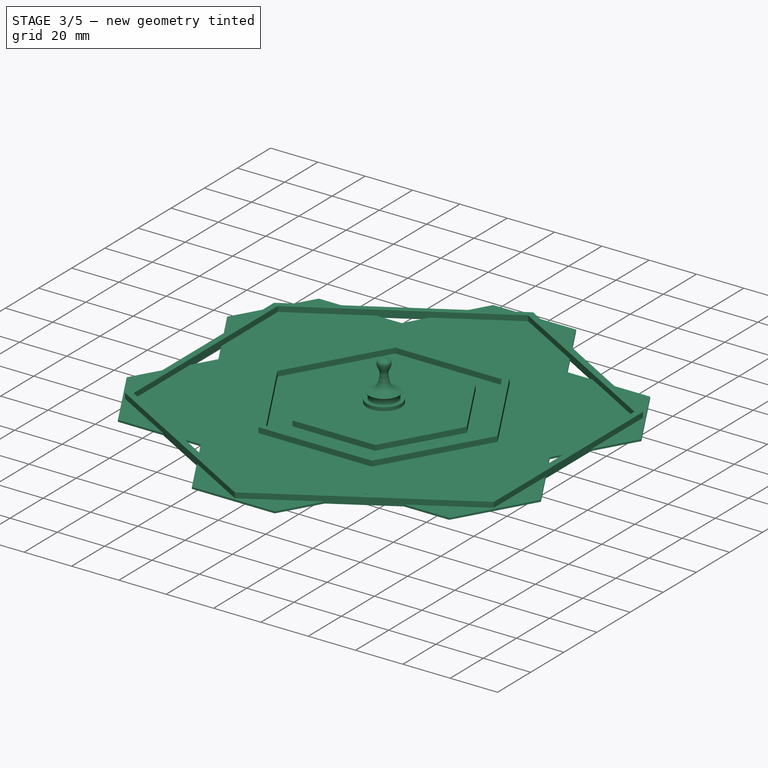
[diagram: stage 3 of 5 — iso view after this stage's code; geometry added in this stage tinted green]
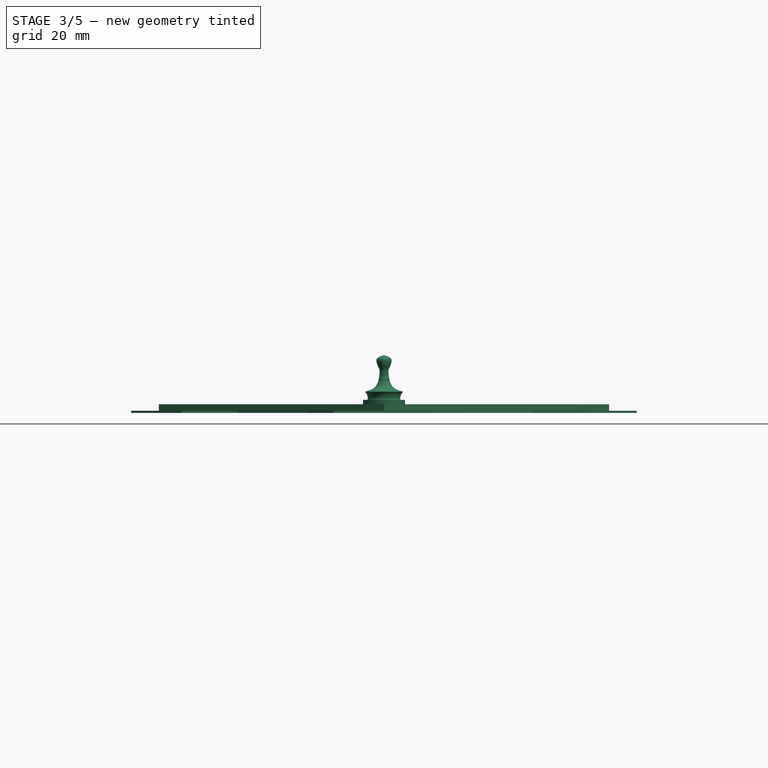
[diagram: stage 3 of 5 — front view after this stage's code; geometry added in this stage tinted green]
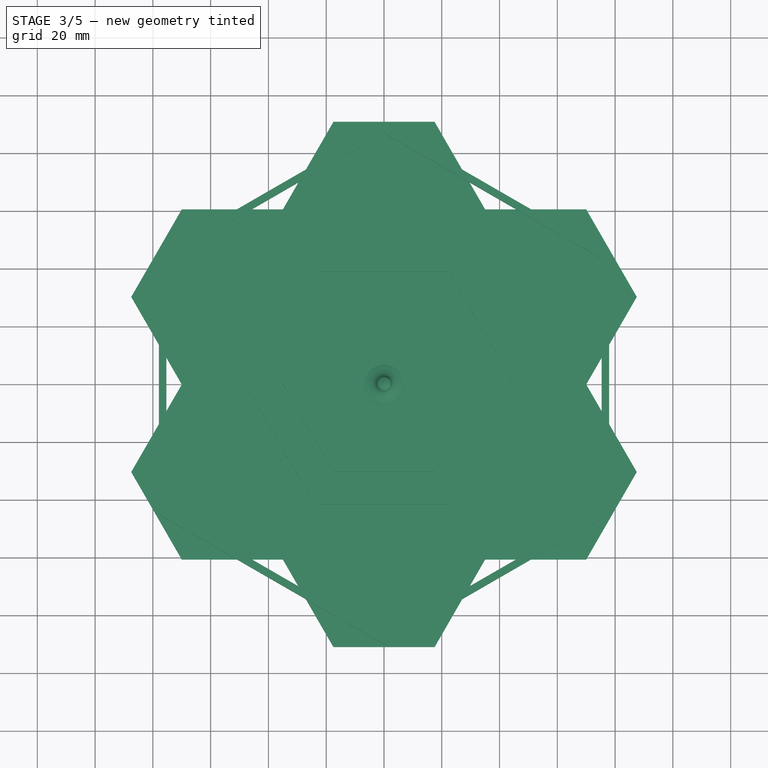
[diagram: stage 3 of 5 — top view after this stage's code; geometry added in this stage tinted green]
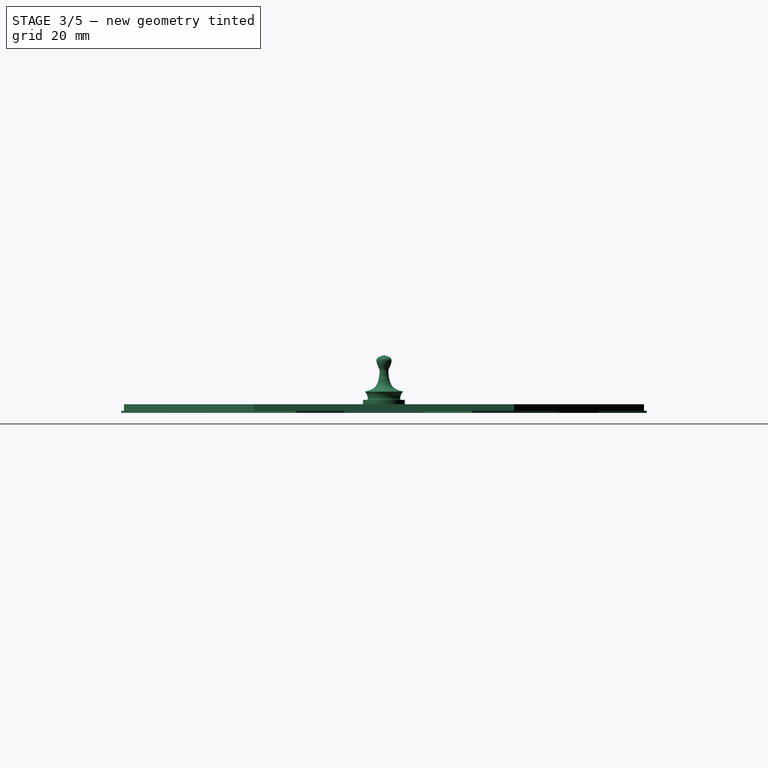
[diagram: stage 3 of 5 — right view after this stage's code; geometry added in this stage tinted green]
FEATURE [PartDesign::Body] Body007  label="defender-b"
  Group = -> [Sketch007,Revolution006]
  Origin = -> Origin008
  Placement = pos=(5.41,-14.29,0) rot=(0,0,1;0rad)
  Tip = -> Revolution006
FEATURE [Sketcher::SketchObject] Sketch008
  FullyConstrained = false
  MapMode = 5
  Placement = pos=(0,0,0) rot=(1,0,0;1.5708rad)
  Support = -> [XZ_Plane009]
  sketch-geometry (29):
    g0: LineSegment StartX=-5.75 StartY=0 StartZ=0 EndX=-5.75 EndY=3 EndZ=0
    g1: LineSegment StartX=-5.75 StartY=3 StartZ=0 EndX=0 EndY=3 EndZ=0
    g2: LineSegment StartX=-5.75 StartY=0 StartZ=0 EndX=-7.25 EndY=0 EndZ=0
    g3: LineSegment StartX=-7.25 StartY=0 StartZ=0 EndX=-7.25 EndY=4.5 EndZ=0
    g4: LineSegment StartX=-7.25 StartY=4.5 StartZ=0 EndX=-5.75 EndY=4.5 EndZ=0
    g5-g16: Circle x12 (B-spline internal-alignment scaffolding for g17; pole/knot coordinates omitted)
    g17: BSplineCurve PolesCount=12 KnotsCount=10 Degree=3 IsPeriodic=0
    g18-g27: GeomPoint x10 (B-spline internal-alignment scaffolding for g17; pole/knot coordinates omitted)
    g28: LineSegment StartX=0 StartY=20 StartZ=0 EndX=0 EndY=3 EndZ=0
  constraints (39):
    c: PointOnObject(g0,g-1)
    c: Vertical(g0)
    c: DistanceY(g0,g0) = 3
    c: Coincident(g1,g0)
    c: PointOnObject(g1,g-2)
    c: Horizontal(g1)
    c: DistanceX(g1,g1) = 5.75
    c: Coincident(g2,g0)
    c: PointOnObject(g2,g-1)
    c: DistanceX(g2,g2) = 1.5
    c: Coincident(g3,g2)
    c: Vertical(g3)
    c: DistanceY(g3,g3) = 4.5
    c: Coincident(g4,g3)
    c: Horizontal(g4)
    c: DistanceX(g4,g4) = 1.5
    c: Weight(g5) = 1
    c: Coincident(g17,g4)
    c: Equal(g5,g6)
    c: Equal(g5,g7)
    c: Equal(g5,g8)
    c: PointOnObject(g8,g7)
    c: Equal(g5,g9)
    c: Equal(g5,g10)
    c: Equal(g5,g11)
    c: PointOnObject(g11,g10)
    c: Equal(g5,g12)
    c: Equal(g5,g13)
    c: Equal(g5,g14)
    c: PointOnObject(g14,g-2)
    c: Equal(g5,g15)
    c: Coincident(g15,g14)
    c: Equal(g5,g16)
    c: InternalAlignment(g5-g16 -> g17) x12
    c: InternalAlignment(g18-g27 -> g17) x10
    c: Coincident(g28,g17)
    c: Coincident(g28,g1)
    c: Vertical(g28)
    c: DistanceY(g28,g28) = 17
FEATURE [PartDesign::Revolution] Revolution007
  Angle = 360
  Axis = (0,-2e-16,1)
  Base = (0,0,0)
  Placement = pos=(0,0,0) rot=(1,0,0;1.5708rad)
  Profile = -> Sketch008
  ReferenceAxis = -> Sketch008 [V_Axis]
FEATURE [Sketcher::SketchObject] Sketch009
  FullyConstrained = false
  MapMode = 5
  Placement = pos=(0,0,0) rot=(1,0,0;1.5708rad)
  Support = -> [XZ_Plane010]
  sketch-geometry (29):
    g0: LineSegment StartX=-5.75 StartY=0 StartZ=0 EndX=-5.75 EndY=3 EndZ=0
    g1: LineSegment StartX=-5.75 StartY=3 StartZ=0 EndX=0 EndY=3 EndZ=0
    g2: LineSegment StartX=-5.75 StartY=0 StartZ=0 EndX=-7.25 EndY=0 EndZ=0
    g3: LineSegment StartX=-7.25 StartY=0 StartZ=0 EndX=-7.25 EndY=4.5 EndZ=0
    g4: LineSegment StartX=-7.25 StartY=4.5 StartZ=0 EndX=-5.75 EndY=4.5 EndZ=0
    g5-g16: Circle x12 (B-spline internal-alignment scaffolding for g17; pole/knot coordinates omitted)
    g17: BSplineCurve PolesCount=12 KnotsCount=10 Degree=3 IsPeriodic=0
    g18-g27: GeomPoint x10 (B-spline internal-alignment scaffolding for g17; pole/knot coordinates omitted)
    g28: LineSegment StartX=0 StartY=20 StartZ=0 EndX=0 EndY=3 EndZ=0
  constraints (39):
    c: PointOnObject(g0,g-1)
    c: Vertical(g0)
    c: DistanceY(g0,g0) = 3
    c: Coincident(g1,g0)
    c: PointOnObject(g1,g-2)
    c: Horizontal(g1)
    c: DistanceX(g1,g1) = 5.75
    c: Coincident(g2,g0)
    c: PointOnObject(g2,g-1)
    c: DistanceX(g2,g2) = 1.5
    c: Coincident(g3,g2)
    c: Vertical(g3)
    c: DistanceY(g3,g3) = 4.5
    c: Coincident(g4,g3)
    c: Horizontal(g4)
    c: DistanceX(g4,g4) = 1.5
    c: Weight(g5) = 1
    c: Coincident(g17,g4)
    c: Equal(g5,g6)
    c: Equal(g5,g7)
    c: Equal(g5,g8)
    c: PointOnObject(g8,g7)
    c: Equal(g5,g9)
    c: Equal(g5,g10)
    c: Equal(g5,g11)
    c: PointOnObject(g11,g10)
    c: Equal(g5,g12)
    c: Equal(g5,g13)
    c: Equal(g5,g14)
    c: PointOnObject(g14,g-2)
    c: Equal(g5,g15)
    c: Coincident(g15,g14)
    c: Equal(g5,g16)
    c: InternalAlignment(g5-g16 -> g17) x12
    c: InternalAlignment(g18-g27 -> g17) x10
    c: Coincident(g28,g17)
    c: Coincident(g28,g1)
    c: Vertical(g28)
    c: DistanceY(g28,g28) = 17
FEATURE [PartDesign::Revolution] Revolution008
  Angle = 360
  Axis = (0,-2e-16,1)
  Base = (0,0,0)
  Placement = pos=(0,0,0) rot=(1,0,0;1.5708rad)
  Profile = -> Sketch009
  ReferenceAxis = -> Sketch009 [V_Axis]
FEATURE [PartDesign::Body] Body009  label="invader-a001"
  Group = -> [Sketch009,Revolution008]
  Origin = -> Origin010
  Placement = pos=(-24.97,15.39,0) rot=(0,0,1;0rad)
  Tip = -> Revolution008
FEATURE [Sketcher::SketchObject] Sketch010
  FullyConstrained = false
  MapMode = 5
  Placement = pos=(0,0,0) rot=(1,0,0;1.5708rad)
  Support = -> [XZ_Plane011]
  sketch-geometry (29):
    g0: LineSegment StartX=-5.75 StartY=0 StartZ=0 EndX=-5.75 EndY=3 EndZ=0
    g1: LineSegment StartX=-5.75 StartY=3 StartZ=0 EndX=0 EndY=3 EndZ=0
    g2: LineSegment StartX=-5.75 StartY=0 StartZ=0 EndX=-7.25 EndY=0 EndZ=0
    g3: LineSegment StartX=-7.25 StartY=0 StartZ=0 EndX=-7.25 EndY=4.5 EndZ=0
    g4: LineSegment StartX=-7.25 StartY=4.5 StartZ=0 EndX=-5.75 EndY=4.5 EndZ=0
    g5-g16: Circle x12 (B-spline internal-alignment scaffolding for g17; pole/knot coordinates omitted)
    g17: BSplineCurve PolesCount=12 KnotsCount=10 Degree=3 IsPeriodic=0
    g18-g27: GeomPoint x10 (B-spline internal-alignment scaffolding for g17; pole/knot coordinates omitted)
    g28: LineSegment StartX=0 StartY=20 StartZ=0 EndX=0 EndY=3 EndZ=0
  constraints (39):
    c: PointOnObject(g0,g-1)
    c: Vertical(g0)
    c: DistanceY(g0,g0) = 3
    c: Coincident(g1,g0)
    c: PointOnObject(g1,g-2)
    c: Horizontal(g1)
    c: DistanceX(g1,g1) = 5.75
    c: Coincident(g2,g0)
    c: PointOnObject(g2,g-1)
    c: DistanceX(g2,g2) = 1.5
    c: Coincident(g3,g2)
    c: Vertical(g3)
    c: DistanceY(g3,g3) = 4.5
    c: Coincident(g4,g3)
    c: Horizontal(g4)
    c: DistanceX(g4,g4) = 1.5
    c: Weight(g5) = 1
    c: Coincident(g17,g4)
    c: Equal(g5,g6)
    c: Equal(g5,g7)
    c: Equal(g5,g8)
    c: PointOnObject(g8,g7)
    c: Equal(g5,g9)
    c: Equal(g5,g10)
    c: Equal(g5,g11)
    c: PointOnObject(g11,g10)
    c: Equal(g5,g12)
    c: Equal(g5,g13)
    c: Equal(g5,g14)
    c: PointOnObject(g14,g-2)
    c: Equal(g5,g15)
    c: Coincident(g15,g14)
    c: Equal(g5,g16)
    c: InternalAlignment(g5-g16 -> g17) x12
    c: InternalAlignment(g18-g27 -> g17) x10
    c: Coincident(g28,g17)
    c: Coincident(g28,g1)
    c: Vertical(g28)
    c: DistanceY(g28,g28) = 17
FEATURE [PartDesign::Revolution] Revolution009
  Angle = 360
  Axis = (0,-2e-16,1)
  Base = (0,0,0)
  Placement = pos=(0,0,0) rot=(1,0,0;1.5708rad)
  Profile = -> Sketch010
  ReferenceAxis = -> Sketch010 [V_Axis]
FEATURE [PartDesign::Body] Body010  label="invader-a002"
  Group = -> [Sketch010,Revolution009]
  Origin = -> Origin011
  Placement = pos=(1.17,-30.44,0) rot=(0,0,1;0rad)
  Tip = -> Revolution009
FEATURE [Sketcher::SketchObject] Sketch011
  FullyConstrained = false
  MapMode = 5
  Placement = pos=(0,0,0) rot=(1,0,0;1.5708rad)
  Support = -> [XZ_Plane012]
  sketch-geometry (29):
    g0: LineSegment StartX=-5.75 StartY=0 StartZ=0 EndX=-5.75 EndY=3 EndZ=0
    g1: LineSegment StartX=-5.75 StartY=3 StartZ=0 EndX=0 EndY=3 EndZ=0
    g2: LineSegment StartX=-5.75 StartY=0 StartZ=0 EndX=-7.25 EndY=0 EndZ=0
    g3: LineSegment StartX=-7.25 StartY=0 StartZ=0 EndX=-7.25 EndY=4.5 EndZ=0
    g4: LineSegment StartX=-7.25 StartY=4.5 StartZ=0 EndX=-5.75 EndY=4.5 EndZ=0
    g5-g16: Circle x12 (B-spline internal-alignment scaffolding for g17; pole/knot coordinates omitted)
    g17: BSplineCurve PolesCount=12 KnotsCount=10 Degree=3 IsPeriodic=0
    g18-g27: GeomPoint x10 (B-spline internal-alignment scaffolding for g17; pole/knot coordinates omitted)
    g28: LineSegment StartX=0 StartY=20 StartZ=0 EndX=0 EndY=3 EndZ=0
  constraints (39):
    c: PointOnObject(g0,g-1)
    c: Vertical(g0)
    c: DistanceY(g0,g0) = 3
    c: Coincident(g1,g0)
    c: PointOnObject(g1,g-2)
    c: Horizontal(g1)
    c: DistanceX(g1,g1) = 5.75
    c: Coincident(g2,g0)
    c: PointOnObject(g2,g-1)
    c: DistanceX(g2,g2) = 1.5
    c: Coincident(g3,g2)
    c: Vertical(g3)
    c: DistanceY(g3,g3) = 4.5
    c: Coincident(g4,g3)
    c: Horizontal(g4)
    c: DistanceX(g4,g4) = 1.5
    c: Weight(g5) = 1
    c: Coincident(g17,g4)
    c: Equal(g5,g6)
    c: Equal(g5,g7)
    c: Equal(g5,g8)
    c: PointOnObject(g8,g7)
    c: Equal(g5,g9)
    c: Equal(g5,g10)
    c: Equal(g5,g11)
    c: PointOnObject(g11,g10)
    c: Equal(g5,g12)
    c: Equal(g5,g13)
    c: Equal(g5,g14)
    c: PointOnObject(g14,g-2)
    c: Equal(g5,g15)
    c: Coincident(g15,g14)
    c: Equal(g5,g16)
    c: InternalAlignment(g5-g16 -> g17) x12
    c: InternalAlignment(g18-g27 -> g17) x10
    c: Coincident(g28,g17)
    c: Coincident(g28,g1)
    c: Vertical(g28)
    c: DistanceY(g28,g28) = 17
FEATURE [PartDesign::Revolution] Revolution010
  Angle = 360
  Axis = (0,-2e-16,1)
  Base = (0,0,0)
  Placement = pos=(0,0,0) rot=(1,0,0;1.5708rad)
  Profile = -> Sketch011
  ReferenceAxis = -> Sketch011 [V_Axis]
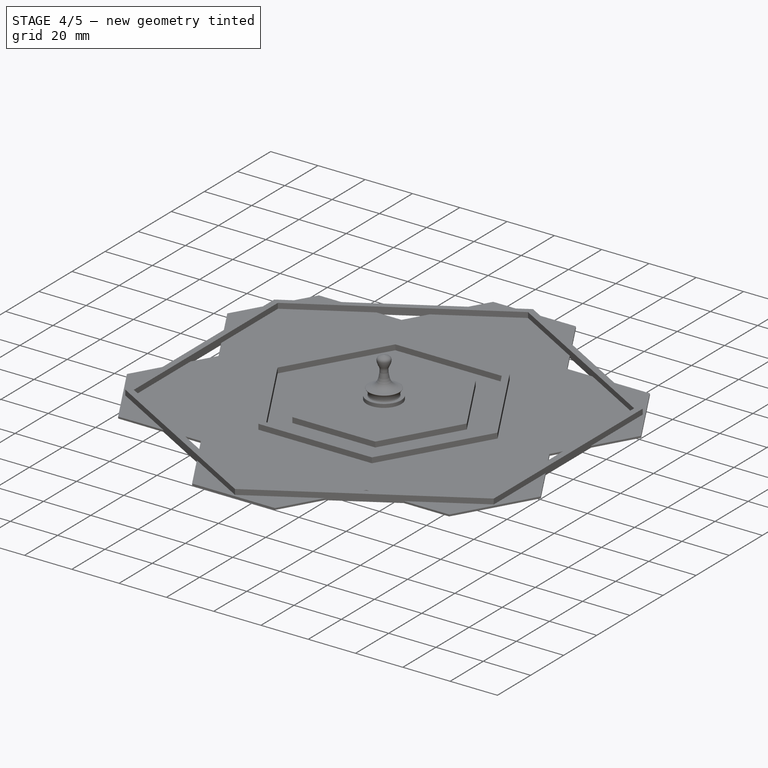
[diagram: stage 4 of 5 — iso view after this stage's code; geometry added in this stage tinted green]
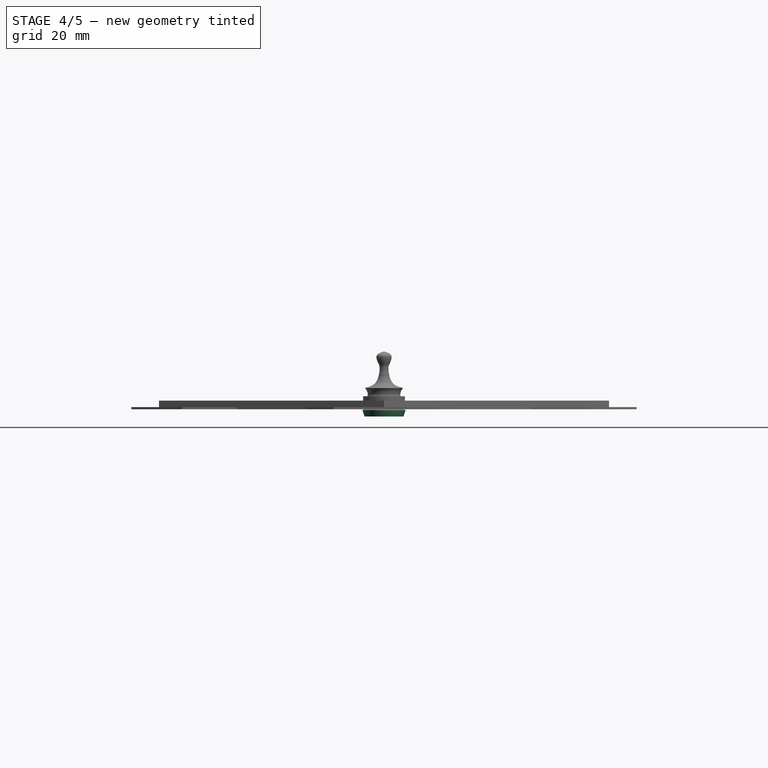
[diagram: stage 4 of 5 — front view after this stage's code; geometry added in this stage tinted green]
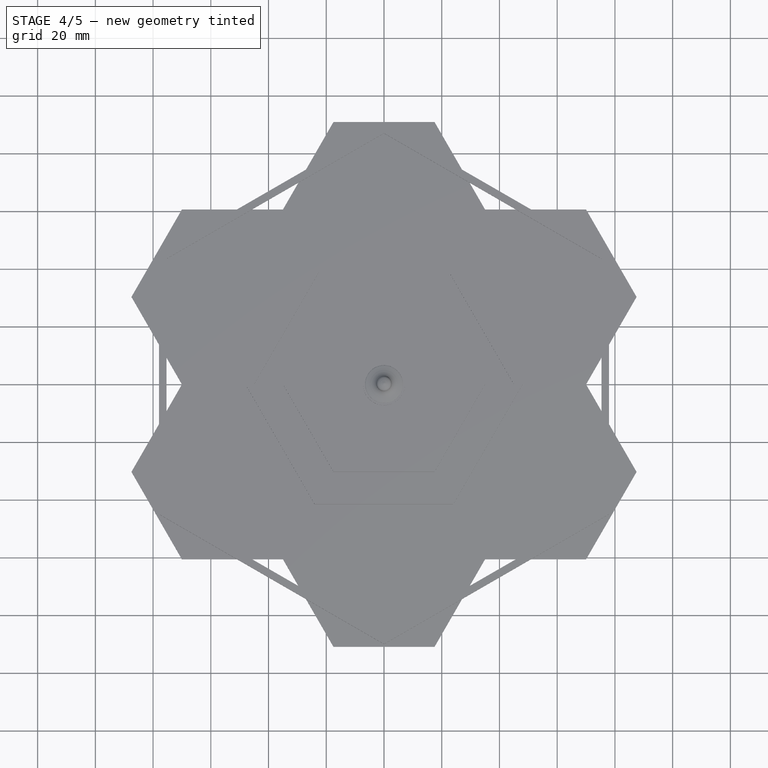
[diagram: stage 4 of 5 — top view after this stage's code; geometry added in this stage tinted green]
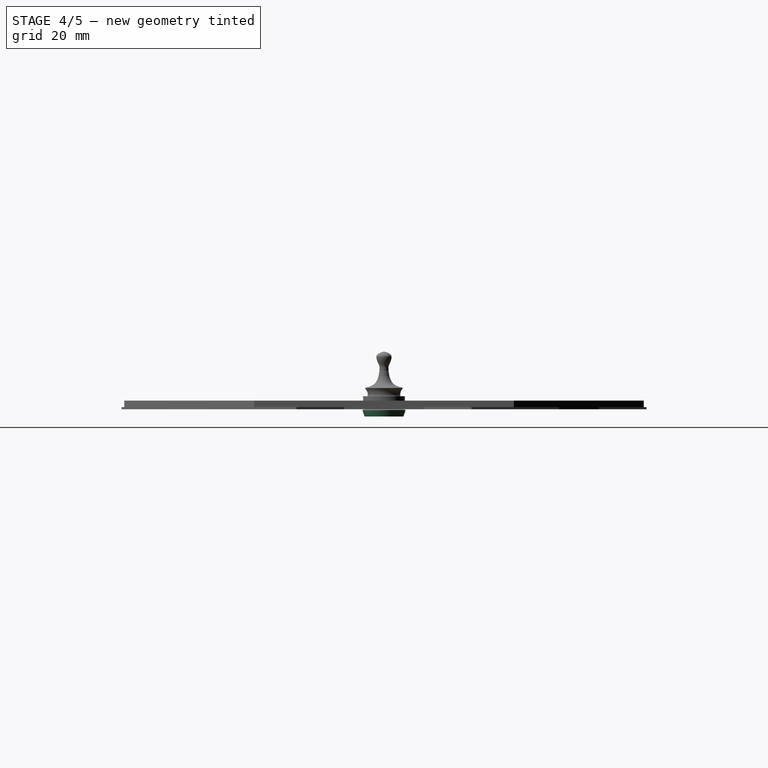
[diagram: stage 4 of 5 — right view after this stage's code; geometry added in this stage tinted green]
FEATURE [PartDesign::Body] Body004  label="resource002"
  Group = -> [Sketch004,Revolution003]
  Origin = -> Origin005
  Placement = pos=(15.22,-0.59,2.77) rot=(0,0,1;0rad)
  Tip = -> Revolution003
FEATURE [Sketcher::SketchObject] Sketch005
  FullyConstrained = true
  MapMode = 5
  Placement = pos=(0,0,0) rot=(1,0,0;1.5708rad)
  Support = -> [XZ_Plane006]
  sketch-geometry (12):
    g0: LineSegment StartX=-7.5 StartY=-0.25 StartZ=0 EndX=-5.25 EndY=0.5 EndZ=0
    g1: LineSegment StartX=-7.5 StartY=-0.25 StartZ=0 EndX=-6.75 EndY=-2.5 EndZ=0
    g2: LineSegment StartX=0 StartY=0.5 StartZ=0 EndX=-4 EndY=0.5 EndZ=0
    g3: LineSegment StartX=-4 StartY=0.5 StartZ=0 EndX=-4 EndY=2 EndZ=0
    g4: LineSegment StartX=-4 StartY=2 StartZ=0 EndX=-5.25 EndY=2 EndZ=0
    g5: LineSegment StartX=-5.25 StartY=2 StartZ=0 EndX=-5.25 EndY=0.5 EndZ=0
    g6: LineSegment StartX=0 StartY=-0.5 StartZ=0 EndX=-4 EndY=-0.5 EndZ=0
    g7: LineSegment StartX=-4 StartY=-0.5 StartZ=0 EndX=-4 EndY=-1 EndZ=0
    g8: LineSegment StartX=-4 StartY=-1 StartZ=0 EndX=-5.75 EndY=-1 EndZ=0
    g9: LineSegment StartX=-5.75 StartY=-1 StartZ=0 EndX=-5.75 EndY=-2.5 EndZ=0
    g10: LineSegment StartX=0 StartY=0.5 StartZ=0 EndX=0 EndY=-0.5 EndZ=0
    g11: LineSegment StartX=-5.75 StartY=-2.5 StartZ=0 EndX=-6.75 EndY=-2.5 EndZ=0
  constraints (35):
    c: Coincident(g1,g0)
    c: DistanceX(g0,g-1) = 7.5
    c: PointOnObject(g2,g-2)
    c: Horizontal(g2)
    c: DistanceX(g2,g2) = 4
    c: Coincident(g3,g2)
    c: Vertical(g3)
    c: DistanceY(g3,g3) = 1.5
    c: Coincident(g4,g3)
    c: Horizontal(g4)
    c: DistanceX(g4,g4) = 1.25
    c: Coincident(g5,g4)
    c: Vertical(g5)
    c: Coincident(g0,g5)
    c: Horizontal(g6)
    c: DistanceX(g6,g6) = 4
    c: DistanceY(g5,g5) = 1.5
    c: Coincident(g7,g6)
    c: Vertical(g7)
    c: DistanceY(g7,g7) = 0.5
    c: Coincident(g8,g7)
    c: Horizontal(g8)
    c: DistanceX(g8,g8) = 1.75
    c: Coincident(g9,g8)
    c: Vertical(g9)
    c: DistanceY(g9,g9) = 1.5
    c: Coincident(g10,g2)
    c: Coincident(g10,g6)
    c: DistanceY(g10,g10) = 1
    c: Symmetric(g2,g6,g-1)
    c: Coincident(g11,g9)
    c: Horizontal(g11)
    c: Coincident(g11,g1)
    c: DistanceX(g11,g11) = 1
    c: DistanceY(g0,g-1) = 0.25
FEATURE [PartDesign::Revolution] Revolution004
  Angle = 360
  Axis = (0,-2e-16,1)
  Base = (0,0,0)
  Placement = pos=(0,0,0) rot=(1,0,0;1.5708rad)
  Profile = -> Sketch005
  ReferenceAxis = -> Sketch005 [V_Axis]
FEATURE [PartDesign::Body] Body005  label="resource-secret"
  Group = -> [Sketch005,Revolution004]
  Origin = -> Origin006
  Placement = pos=(-15.9,3.09,2.08) rot=(0,1,0;3.14159rad)
  Tip = -> Revolution004
FEATURE [Sketcher::SketchObject] Sketch006
  FullyConstrained = false
  MapMode = 5
  Placement = pos=(0,0,0) rot=(1,0,0;1.5708rad)
  Support = -> [XZ_Plane007]
  sketch-geometry (29):
    g0: LineSegment StartX=-5.75 StartY=0 StartZ=0 EndX=-5.75 EndY=3 EndZ=0
    g1: LineSegment StartX=-5.75 StartY=3 StartZ=0 EndX=0 EndY=3 EndZ=0
    g2: LineSegment StartX=-5.75 StartY=0 StartZ=0 EndX=-7.25 EndY=0 EndZ=0
    g3: LineSegment StartX=-7.25 StartY=0 StartZ=0 EndX=-7.25 EndY=4.5 EndZ=0
    g4: LineSegment StartX=-7.25 StartY=4.5 StartZ=0 EndX=-5.75 EndY=4.5 EndZ=0
    g5-g16: Circle x12 (B-spline internal-alignment scaffolding for g17; pole/knot coordinates omitted)
    g17: BSplineCurve PolesCount=12 KnotsCount=10 Degree=3 IsPeriodic=0
    g18-g27: GeomPoint x10 (B-spline internal-alignment scaffolding for g17; pole/knot coordinates omitted)
    g28: LineSegment StartX=0 StartY=20 StartZ=0 EndX=0 EndY=3 EndZ=0
  constraints (39):
    c: PointOnObject(g0,g-1)
    c: Vertical(g0)
    c: DistanceY(g0,g0) = 3
    c: Coincident(g1,g0)
    c: PointOnObject(g1,g-2)
    c: Horizontal(g1)
    c: DistanceX(g1,g1) = 5.75
    c: Coincident(g2,g0)
    c: PointOnObject(g2,g-1)
    c: DistanceX(g2,g2) = 1.5
    c: Coincident(g3,g2)
    c: Vertical(g3)
    c: DistanceY(g3,g3) = 4.5
    c: Coincident(g4,g3)
    c: Horizontal(g4)
    c: DistanceX(g4,g4) = 1.5
    c: Weight(g5) = 1
    c: Coincident(g17,g4)
    c: Equal(g5,g6)
    c: Equal(g5,g7)
    c: Equal(g5,g8)
    c: PointOnObject(g8,g7)
    c: Equal(g5,g9)
    c: Equal(g5,g10)
    c: Equal(g5,g11)
    c: PointOnObject(g11,g10)
    c: Equal(g5,g12)
    c: Equal(g5,g13)
    c: Equal(g5,g14)
    c: PointOnObject(g14,g-2)
    c: Equal(g5,g15)
    c: Coincident(g15,g14)
    c: Equal(g5,g16)
    c: InternalAlignment(g5-g16 -> g17) x12
    c: InternalAlignment(g18-g27 -> g17) x10
    c: Coincident(g28,g17)
    c: Coincident(g28,g1)
    c: Vertical(g28)
    c: DistanceY(g28,g28) = 17
FEATURE [PartDesign::Revolution] Revolution005
  Angle = 360
  Axis = (0,-2e-16,1)
  Base = (0,0,0)
  Placement = pos=(0,0,0) rot=(1,0,0;1.5708rad)
  Profile = -> Sketch006
  ReferenceAxis = -> Sketch006 [V_Axis]
FEATURE [PartDesign::Body] Body006  label="defender-a"
  Group = -> [Sketch006,Revolution005]
  Origin = -> Origin007
  Placement = pos=(-10.62,-11.96,0) rot=(0,0,1;0rad)
  Tip = -> Revolution005
FEATURE [Sketcher::SketchObject] Sketch007
  FullyConstrained = false
  MapMode = 5
  Placement = pos=(0,0,0) rot=(1,0,0;1.5708rad)
  Support = -> [XZ_Plane008]
  sketch-geometry (29):
    g0: LineSegment StartX=-5.75 StartY=0 StartZ=0 EndX=-5.75 EndY=3 EndZ=0
    g1: LineSegment StartX=-5.75 StartY=3 StartZ=0 EndX=0 EndY=3 EndZ=0
    g2: LineSegment StartX=-5.75 StartY=0 StartZ=0 EndX=-7.25 EndY=0 EndZ=0
    g3: LineSegment StartX=-7.25 StartY=0 StartZ=0 EndX=-7.25 EndY=4.5 EndZ=0
    g4: LineSegment StartX=-7.25 StartY=4.5 StartZ=0 EndX=-5.75 EndY=4.5 EndZ=0
    g5-g16: Circle x12 (B-spline internal-alignment scaffolding for g17; pole/knot coordinates omitted)
    g17: BSplineCurve PolesCount=12 KnotsCount=10 Degree=3 IsPeriodic=0
    g18-g27: GeomPoint x10 (B-spline internal-alignment scaffolding for g17; pole/knot coordinates omitted)
    g28: LineSegment StartX=0 StartY=20 StartZ=0 EndX=0 EndY=3 EndZ=0
  constraints (39):
    c: PointOnObject(g0,g-1)
    c: Vertical(g0)
    c: DistanceY(g0,g0) = 3
    c: Coincident(g1,g0)
    c: PointOnObject(g1,g-2)
    c: Horizontal(g1)
    c: DistanceX(g1,g1) = 5.75
    c: Coincident(g2,g0)
    c: PointOnObject(g2,g-1)
    c: DistanceX(g2,g2) = 1.5
    c: Coincident(g3,g2)
    c: Vertical(g3)
    c: DistanceY(g3,g3) = 4.5
    c: Coincident(g4,g3)
    c: Horizontal(g4)
    c: DistanceX(g4,g4) = 1.5
    c: Weight(g5) = 1
    c: Coincident(g17,g4)
    c: Equal(g5,g6)
    c: Equal(g5,g7)
    c: Equal(g5,g8)
    c: PointOnObject(g8,g7)
    c: Equal(g5,g9)
    c: Equal(g5,g10)
    c: Equal(g5,g11)
    c: PointOnObject(g11,g10)
    c: Equal(g5,g12)
    c: Equal(g5,g13)
    c: Equal(g5,g14)
    c: PointOnObject(g14,g-2)
    c: Equal(g5,g15)
    c: Coincident(g15,g14)
    c: Equal(g5,g16)
    c: InternalAlignment(g5-g16 -> g17) x12
    c: InternalAlignment(g18-g27 -> g17) x10
    c: Coincident(g28,g17)
    c: Coincident(g28,g1)
    c: Vertical(g28)
    c: DistanceY(g28,g28) = 17
FEATURE [PartDesign::Revolution] Revolution006
  Angle = 360
  Axis = (0,-2e-16,1)
  Base = (0,0,0)
  Placement = pos=(0,0,0) rot=(1,0,0;1.5708rad)
  Profile = -> Sketch007
  ReferenceAxis = -> Sketch007 [V_Axis]
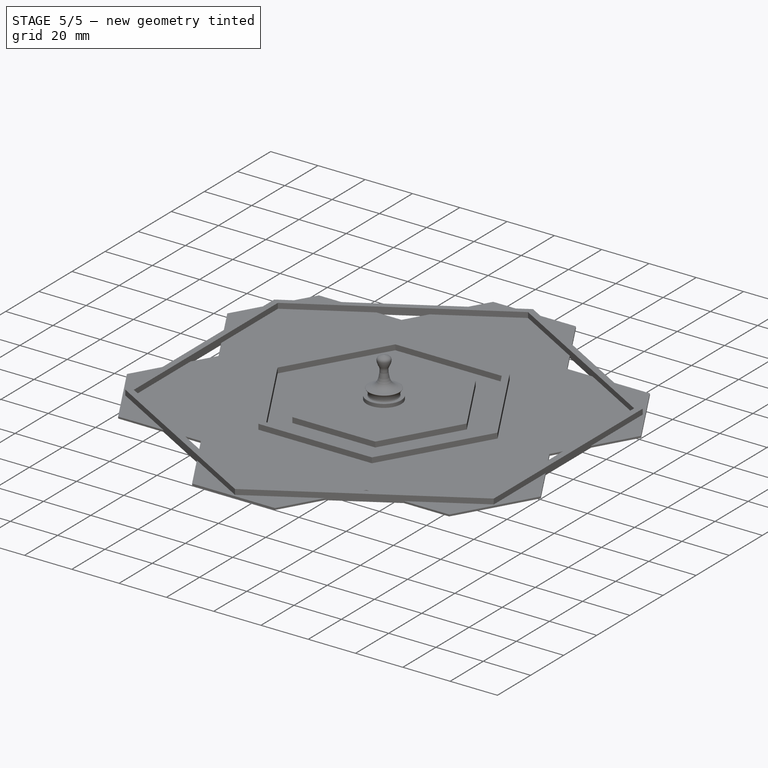
[diagram: stage 5 of 5 — iso view after this stage's code; geometry added in this stage tinted green]
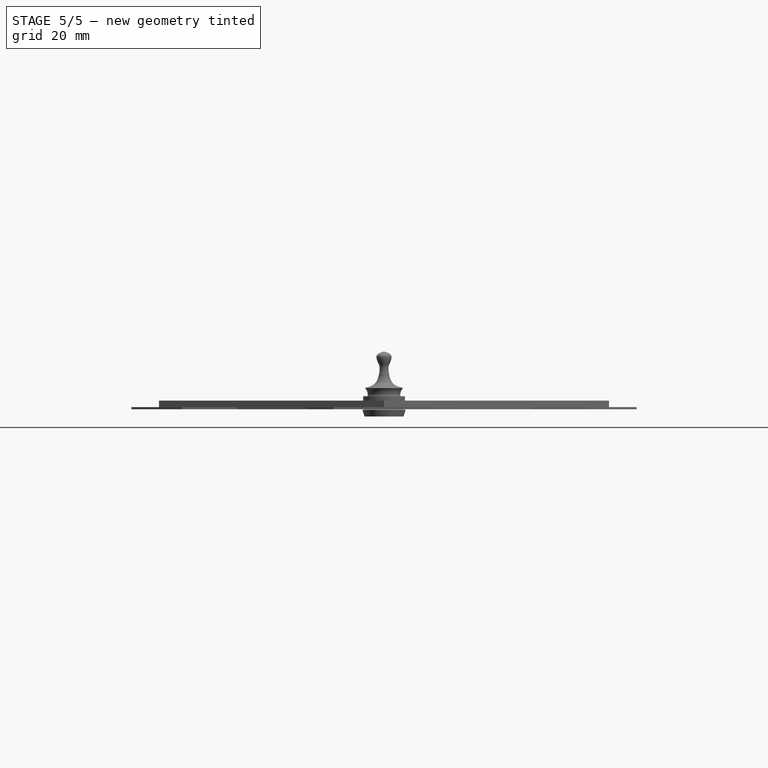
[diagram: stage 5 of 5 — front view after this stage's code; geometry added in this stage tinted green]
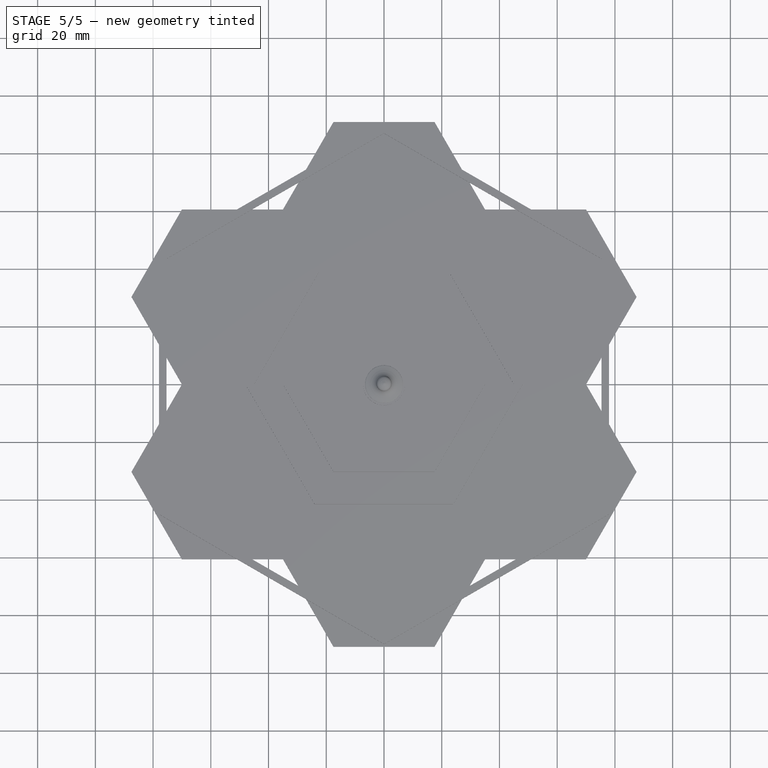
[diagram: stage 5 of 5 — top view after this stage's code; geometry added in this stage tinted green]
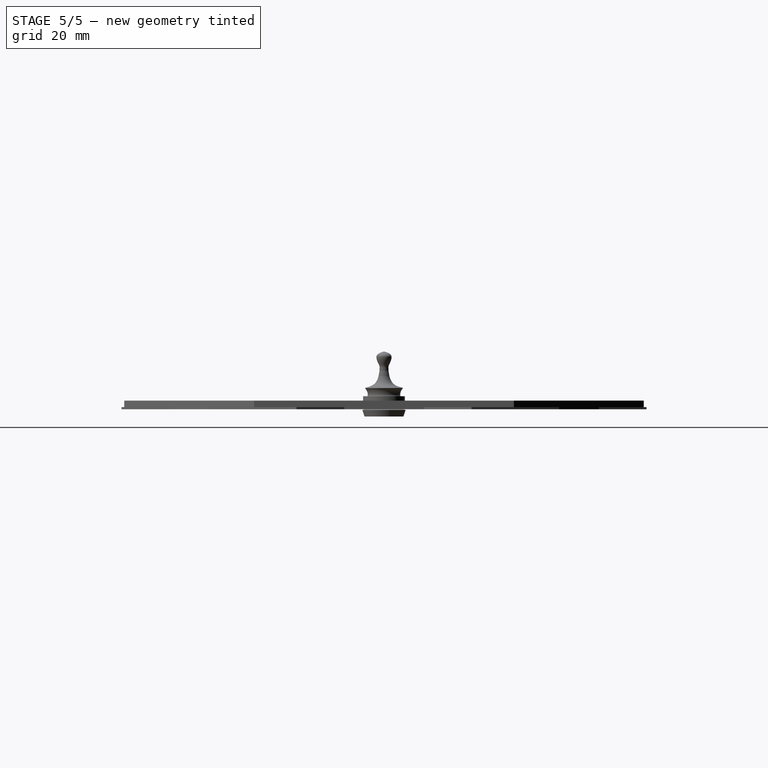
[diagram: stage 5 of 5 — right view after this stage's code; geometry added in this stage tinted green]
FEATURE [Sketcher::SketchObject] Sketch
  FullyConstrained = true
  MapMode = 5
  Support = -> [XY_Plane]
  sketch-geometry (7):
    g0: LineSegment StartX=-34.641 StartY=2.13e-14 StartZ=0 EndX=-17.3205 EndY=-30 EndZ=0
    g1: LineSegment StartX=-17.3205 StartY=-30 StartZ=0 EndX=17.3205 EndY=-30 EndZ=0
    g2: LineSegment StartX=17.3205 StartY=-30 StartZ=0 EndX=34.641 EndY=0 EndZ=0
    g3: LineSegment StartX=34.641 StartY=0 StartZ=0 EndX=17.3205 EndY=30 EndZ=0
    g4: LineSegment StartX=17.3205 StartY=30 StartZ=0 EndX=-17.3205 EndY=30 EndZ=0
    g5: LineSegment StartX=-17.3205 StartY=30 StartZ=0 EndX=-34.641 EndY=2.13e-14 EndZ=0
    g6: Circle CenterX=0 CenterY=0 CenterZ=0 NormalX=0 NormalY=0 NormalZ=1 AngleXU=0 Radius=34.641
  constraints (16):
    c: Coincident(g0,g1)
    c: Coincident(g1,g2)
    c: Coincident(g2,g3)
    c: Coincident(g3,g4)
    c: Coincident(g4,g5)
    c: Coincident(g5,g0)
    c: Equal(g0, g1-g5) x5
    c: PointOnObject(g0,g6)
    c: PointOnObject(g1,g6)
    c: PointOnObject(g2,g6)
    c: PointOnObject(g3,g6)
    c: PointOnObject(g4,g6)
    c: PointOnObject(g5,g6)
    c: Coincident(g6,g-1)
    c: Distance(g4,g2) = 60
    c: PointOnObject(g2,g-1)
FEATURE [PartDesign::Body] Body
  Group = -> [Sketch]
  Origin = -> Origin
FEATURE [Sketcher::SketchObject] Sketch001
  FullyConstrained = true
  MapMode = 5
  Placement = pos=(0,0,0) rot=(1,0,0;1.5708rad)
  Support = -> [XZ_Plane002]
  sketch-geometry (7):
    g0: LineSegment StartX=0 StartY=0 StartZ=0 EndX=-4 EndY=0 EndZ=0
    g1: LineSegment StartX=-4 StartY=0 StartZ=0 EndX=-5.25 EndY=2.5 EndZ=0
    g2: LineSegment StartX=-5.25 StartY=2.5 StartZ=0 EndX=-3 EndY=2 EndZ=0
    g3: LineSegment StartX=-3 StartY=2 StartZ=0 EndX=-1.5 EndY=2 EndZ=0
    g4: LineSegment StartX=1e-16 StartY=8 StartZ=0 EndX=0 EndY=0 EndZ=0
    g5: ArcOfCircle CenterX=0 CenterY=5.71875 CenterZ=0 NormalX=0 NormalY=0 NormalZ=1 AngleXU=0 Radius=2.28125 StartAngle=1.5708 EndAngle=3.99485
    g6: LineSegment StartX=-1.5 StartY=2 StartZ=0 EndX=-1.5 EndY=4 EndZ=0
  constraints (21):
    c: Coincident(g0,g-1)
    c: PointOnObject(g0,g-1)
    c: Coincident(g1,g0)
    c: Coincident(g2,g1)
    c: Coincident(g3,g2)
    c: Horizontal(g3)
    c: Coincident(g4,g0)
    c: Coincident(g6,g3)
    c: PointOnObject(g5,g-2)
    c: Coincident(g4,g5)
    c: PointOnObject(g5,g-2)
    c: Coincident(g5,g6)
    c: DistanceX(g0,g0) = 4
    c: DistanceY(g4,g4) = 8
    c: Distance(g1,g4) = 5.25
    c: Angle(g6,g3) = 1.5708
    c: DistanceY(g-1,g1) = 2.5
    c: Distance(g5,g4) = 1.5
    c: DistanceY(g-1,g3) = 2
    c: DistanceX(g-2,g2) = -3
    c: DistanceY(g-1,g5) = 4
FEATURE [PartDesign::Revolution] Revolution
  Angle = 360
  Axis = (0,2e-16,1)
  Base = (0,0,0)
  Placement = pos=(0,0,0) rot=(1,0,0;1.5708rad)
  Profile = -> Sketch001
  ReferenceAxis = -> Sketch001 [V_Axis]
FEATURE [PartDesign::Body] Body001  label="flag"
  Group = -> [Sketch001,Revolution]
  Origin = -> Origin002
  Placement = pos=(-0.38,0,0) rot=(0,0,1;0rad)
  Tip = -> Revolution
FEATURE [Sketcher::SketchObject] Sketch002
  FullyConstrained = true
  MapMode = 5
  Placement = pos=(0,0,0) rot=(1,0,0;1.5708rad)
  Support = -> [XZ_Plane003]
  sketch-geometry (12):
    g0: LineSegment StartX=-7.5 StartY=-0.25 StartZ=0 EndX=-5.25 EndY=0.5 EndZ=0
    g1: LineSegment StartX=-7.5 StartY=-0.25 StartZ=0 EndX=-6.75 EndY=-2.5 EndZ=0
    g2: LineSegment StartX=0 StartY=0.5 StartZ=0 EndX=-4 EndY=0.5 EndZ=0
    g3: LineSegment StartX=-4 StartY=0.5 StartZ=0 EndX=-4 EndY=2 EndZ=0
    g4: LineSegment StartX=-4 StartY=2 StartZ=0 EndX=-5.25 EndY=2 EndZ=0
    g5: LineSegment StartX=-5.25 StartY=2 StartZ=0 EndX=-5.25 EndY=0.5 EndZ=0
    g6: LineSegment StartX=0 StartY=-0.5 StartZ=0 EndX=-4 EndY=-0.5 EndZ=0
    g7: LineSegment StartX=-4 StartY=-0.5 StartZ=0 EndX=-4 EndY=-1 EndZ=0
    g8: LineSegment StartX=-4 StartY=-1 StartZ=0 EndX=-5.75 EndY=-1 EndZ=0
    g9: LineSegment StartX=-5.75 StartY=-1 StartZ=0 EndX=-5.75 EndY=-2.5 EndZ=0
    g10: LineSegment StartX=0 StartY=0.5 StartZ=0 EndX=0 EndY=-0.5 EndZ=0
    g11: LineSegment StartX=-5.75 StartY=-2.5 StartZ=0 EndX=-6.75 EndY=-2.5 EndZ=0
  constraints (35):
    c: Coincident(g1,g0)
    c: DistanceX(g0,g-1) = 7.5
    c: PointOnObject(g2,g-2)
    c: Horizontal(g2)
    c: DistanceX(g2,g2) = 4
    c: Coincident(g3,g2)
    c: Vertical(g3)
    c: DistanceY(g3,g3) = 1.5
    c: Coincident(g4,g3)
    c: Horizontal(g4)
    c: DistanceX(g4,g4) = 1.25
    c: Coincident(g5,g4)
    c: Vertical(g5)
    c: Coincident(g0,g5)
    c: Horizontal(g6)
    c: DistanceX(g6,g6) = 4
    c: DistanceY(g5,g5) = 1.5
    c: Coincident(g7,g6)
    c: Vertical(g7)
    c: DistanceY(g7,g7) = 0.5
    c: Coincident(g8,g7)
    c: Horizontal(g8)
    c: DistanceX(g8,g8) = 1.75
    c: Coincident(g9,g8)
    c: Vertical(g9)
    c: DistanceY(g9,g9) = 1.5
    c: Coincident(g10,g2)
    c: Coincident(g10,g6)
    c: DistanceY(g10,g10) = 1
    c: Symmetric(g2,g6,g-1)
    c: Coincident(g11,g9)
    c: Horizontal(g11)
    c: Coincident(g11,g1)
    c: DistanceX(g11,g11) = 1
    c: DistanceY(g0,g-1) = 0.25
FEATURE [PartDesign::Revolution] Revolution001
  Angle = 360
  Axis = (0,-2e-16,1)
  Base = (0,0,0)
  Placement = pos=(0,0,0) rot=(1,0,0;1.5708rad)
  Profile = -> Sketch002
  ReferenceAxis = -> Sketch002 [V_Axis]
FEATURE [PartDesign::Body] Body002  label="resource"
  Group = -> [Sketch002,Revolution001]
  Origin = -> Origin003
  Placement = pos=(-6.36,16.28,2.32) rot=(0,0,1;0rad)
  Tip = -> Revolution001
FEATURE [Sketcher::SketchObject] Sketch003
  FullyConstrained = true
  MapMode = 5
  Placement = pos=(0,0,0) rot=(1,0,0;1.5708rad)
  Support = -> [XZ_Plane004]
  sketch-geometry (12):
    g0: LineSegment StartX=-7.5 StartY=-0.25 StartZ=0 EndX=-5.25 EndY=0.5 EndZ=0
    g1: LineSegment StartX=-7.5 StartY=-0.25 StartZ=0 EndX=-6.75 EndY=-2.5 EndZ=0
    g2: LineSegment StartX=0 StartY=0.5 StartZ=0 EndX=-4 EndY=0.5 EndZ=0
    g3: LineSegment StartX=-4 StartY=0.5 StartZ=0 EndX=-4 EndY=2 EndZ=0
    g4: LineSegment StartX=-4 StartY=2 StartZ=0 EndX=-5.25 EndY=2 EndZ=0
    g5: LineSegment StartX=-5.25 StartY=2 StartZ=0 EndX=-5.25 EndY=0.5 EndZ=0
    g6: LineSegment StartX=0 StartY=-0.5 StartZ=0 EndX=-4 EndY=-0.5 EndZ=0
    g7: LineSegment StartX=-4 StartY=-0.5 StartZ=0 EndX=-4 EndY=-1 EndZ=0
    g8: LineSegment StartX=-4 StartY=-1 StartZ=0 EndX=-5.75 EndY=-1 EndZ=0
    g9: LineSegment StartX=-5.75 StartY=-1 StartZ=0 EndX=-5.75 EndY=-2.5 EndZ=0
    g10: LineSegment StartX=0 StartY=0.5 StartZ=0 EndX=0 EndY=-0.5 EndZ=0
    g11: LineSegment StartX=-5.75 StartY=-2.5 StartZ=0 EndX=-6.75 EndY=-2.5 EndZ=0
  constraints (35):
    c: Coincident(g1,g0)
    c: DistanceX(g0,g-1) = 7.5
    c: PointOnObject(g2,g-2)
    c: Horizontal(g2)
    c: DistanceX(g2,g2) = 4
    c: Coincident(g3,g2)
    c: Vertical(g3)
    c: DistanceY(g3,g3) = 1.5
    c: Coincident(g4,g3)
    c: Horizontal(g4)
    c: DistanceX(g4,g4) = 1.25
    c: Coincident(g5,g4)
    c: Vertical(g5)
    c: Coincident(g0,g5)
    c: Horizontal(g6)
    c: DistanceX(g6,g6) = 4
    c: DistanceY(g5,g5) = 1.5
    c: Coincident(g7,g6)
    c: Vertical(g7)
    c: DistanceY(g7,g7) = 0.5
    c: Coincident(g8,g7)
    c: Horizontal(g8)
    c: DistanceX(g8,g8) = 1.75
    c: Coincident(g9,g8)
    c: Vertical(g9)
    c: DistanceY(g9,g9) = 1.5
    c: Coincident(g10,g2)
    c: Coincident(g10,g6)
    c: DistanceY(g10,g10) = 1
    c: Symmetric(g2,g6,g-1)
    c: Coincident(g11,g9)
    c: Horizontal(g11)
    c: Coincident(g11,g1)
    c: DistanceX(g11,g11) = 1
    c: DistanceY(g0,g-1) = 0.25
FEATURE [PartDesign::Revolution] Revolution002
  Angle = 360
  Axis = (0,-2e-16,1)
  Base = (0,0,0)
  Placement = pos=(0,0,0) rot=(1,0,0;1.5708rad)
  Profile = -> Sketch003
  ReferenceAxis = -> Sketch003 [V_Axis]
FEATURE [PartDesign::Body] Body003  label="resource001"
  Group = -> [Sketch003,Revolution002]
  Origin = -> Origin004
  Placement = pos=(9.67,14.73,2.42) rot=(0,0,1;0rad)
  Tip = -> Revolution002
FEATURE [Sketcher::SketchObject] Sketch004
  FullyConstrained = true
  MapMode = 5
  Placement = pos=(0,0,0) rot=(1,0,0;1.5708rad)
  Support = -> [XZ_Plane005]
  sketch-geometry (12):
    g0: LineSegment StartX=-7.5 StartY=-0.25 StartZ=0 EndX=-5.25 EndY=0.5 EndZ=0
    g1: LineSegment StartX=-7.5 StartY=-0.25 StartZ=0 EndX=-6.75 EndY=-2.5 EndZ=0
    g2: LineSegment StartX=0 StartY=0.5 StartZ=0 EndX=-4 EndY=0.5 EndZ=0
    g3: LineSegment StartX=-4 StartY=0.5 StartZ=0 EndX=-4 EndY=2 EndZ=0
    g4: LineSegment StartX=-4 StartY=2 StartZ=0 EndX=-5.25 EndY=2 EndZ=0
    g5: LineSegment StartX=-5.25 StartY=2 StartZ=0 EndX=-5.25 EndY=0.5 EndZ=0
    g6: LineSegment StartX=0 StartY=-0.5 StartZ=0 EndX=-4 EndY=-0.5 EndZ=0
    g7: LineSegment StartX=-4 StartY=-0.5 StartZ=0 EndX=-4 EndY=-1 EndZ=0
    g8: LineSegment StartX=-4 StartY=-1 StartZ=0 EndX=-5.75 EndY=-1 EndZ=0
    g9: LineSegment StartX=-5.75 StartY=-1 StartZ=0 EndX=-5.75 EndY=-2.5 EndZ=0
    g10: LineSegment StartX=0 StartY=0.5 StartZ=0 EndX=0 EndY=-0.5 EndZ=0
    g11: LineSegment StartX=-5.75 StartY=-2.5 StartZ=0 EndX=-6.75 EndY=-2.5 EndZ=0
  constraints (35):
    c: Coincident(g1,g0)
    c: DistanceX(g0,g-1) = 7.5
    c: PointOnObject(g2,g-2)
    c: Horizontal(g2)
    c: DistanceX(g2,g2) = 4
    c: Coincident(g3,g2)
    c: Vertical(g3)
    c: DistanceY(g3,g3) = 1.5
    c: Coincident(g4,g3)
    c: Horizontal(g4)
    c: DistanceX(g4,g4) = 1.25
    c: Coincident(g5,g4)
    c: Vertical(g5)
    c: Coincident(g0,g5)
    c: Horizontal(g6)
    c: DistanceX(g6,g6) = 4
    c: DistanceY(g5,g5) = 1.5
    c: Coincident(g7,g6)
    c: Vertical(g7)
    c: DistanceY(g7,g7) = 0.5
    c: Coincident(g8,g7)
    c: Horizontal(g8)
    c: DistanceX(g8,g8) = 1.75
    c: Coincident(g9,g8)
    c: Vertical(g9)
    c: DistanceY(g9,g9) = 1.5
    c: Coincident(g10,g2)
    c: Coincident(g10,g6)
    c: DistanceY(g10,g10) = 1
    c: Symmetric(g2,g6,g-1)
    c: Coincident(g11,g9)
    c: Horizontal(g11)
    c: Coincident(g11,g1)
    c: DistanceX(g11,g11) = 1
    c: DistanceY(g0,g-1) = 0.25
FEATURE [PartDesign::Revolution] Revolution003
  Angle = 360
  Axis = (0,-2e-16,1)
  Base = (0,0,0)
  Placement = pos=(0,0,0) rot=(1,0,0;1.5708rad)
  Profile = -> Sketch004
  ReferenceAxis = -> Sketch004 [V_Axis]
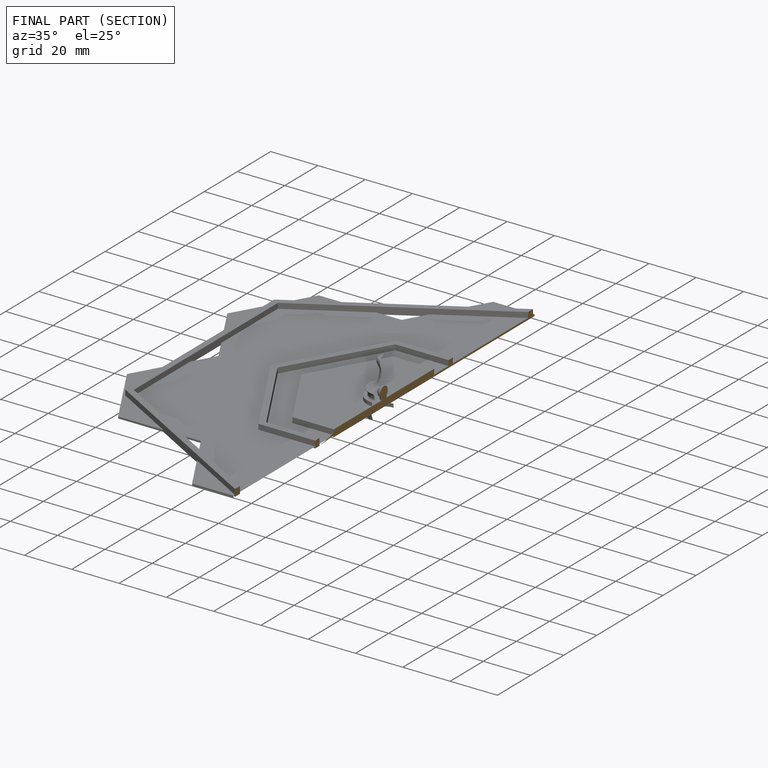
[diagram: finished part — half-section view (interior)]
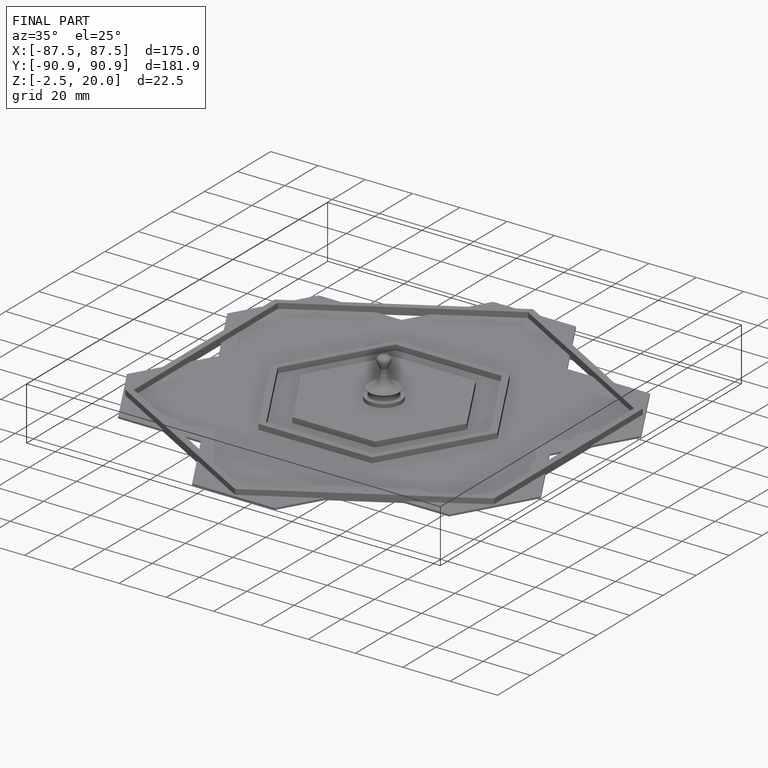
[diagram: finished part — iso view with bounding-box wireframe]
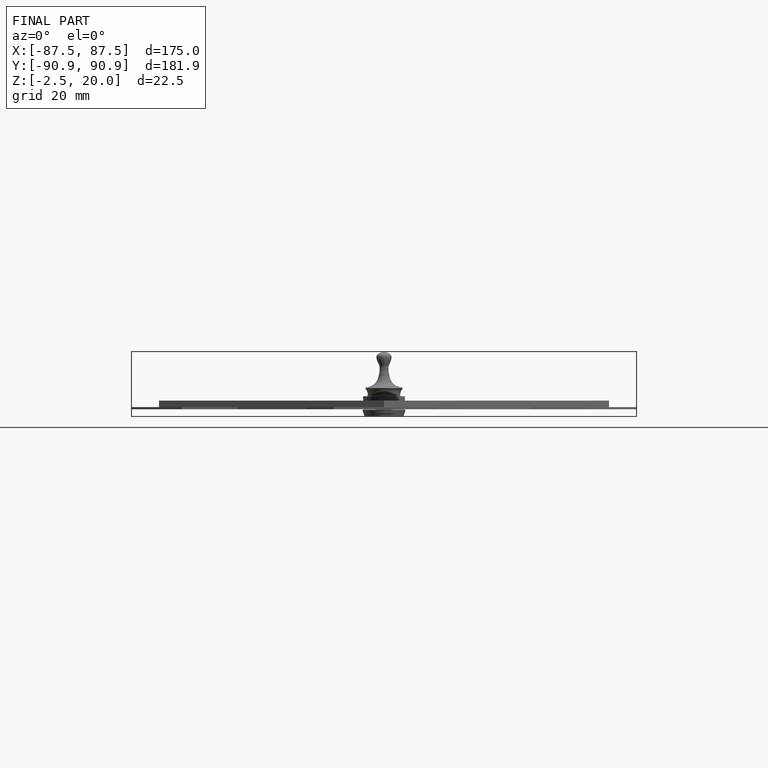
[diagram: finished part — front view with bounding-box wireframe]
